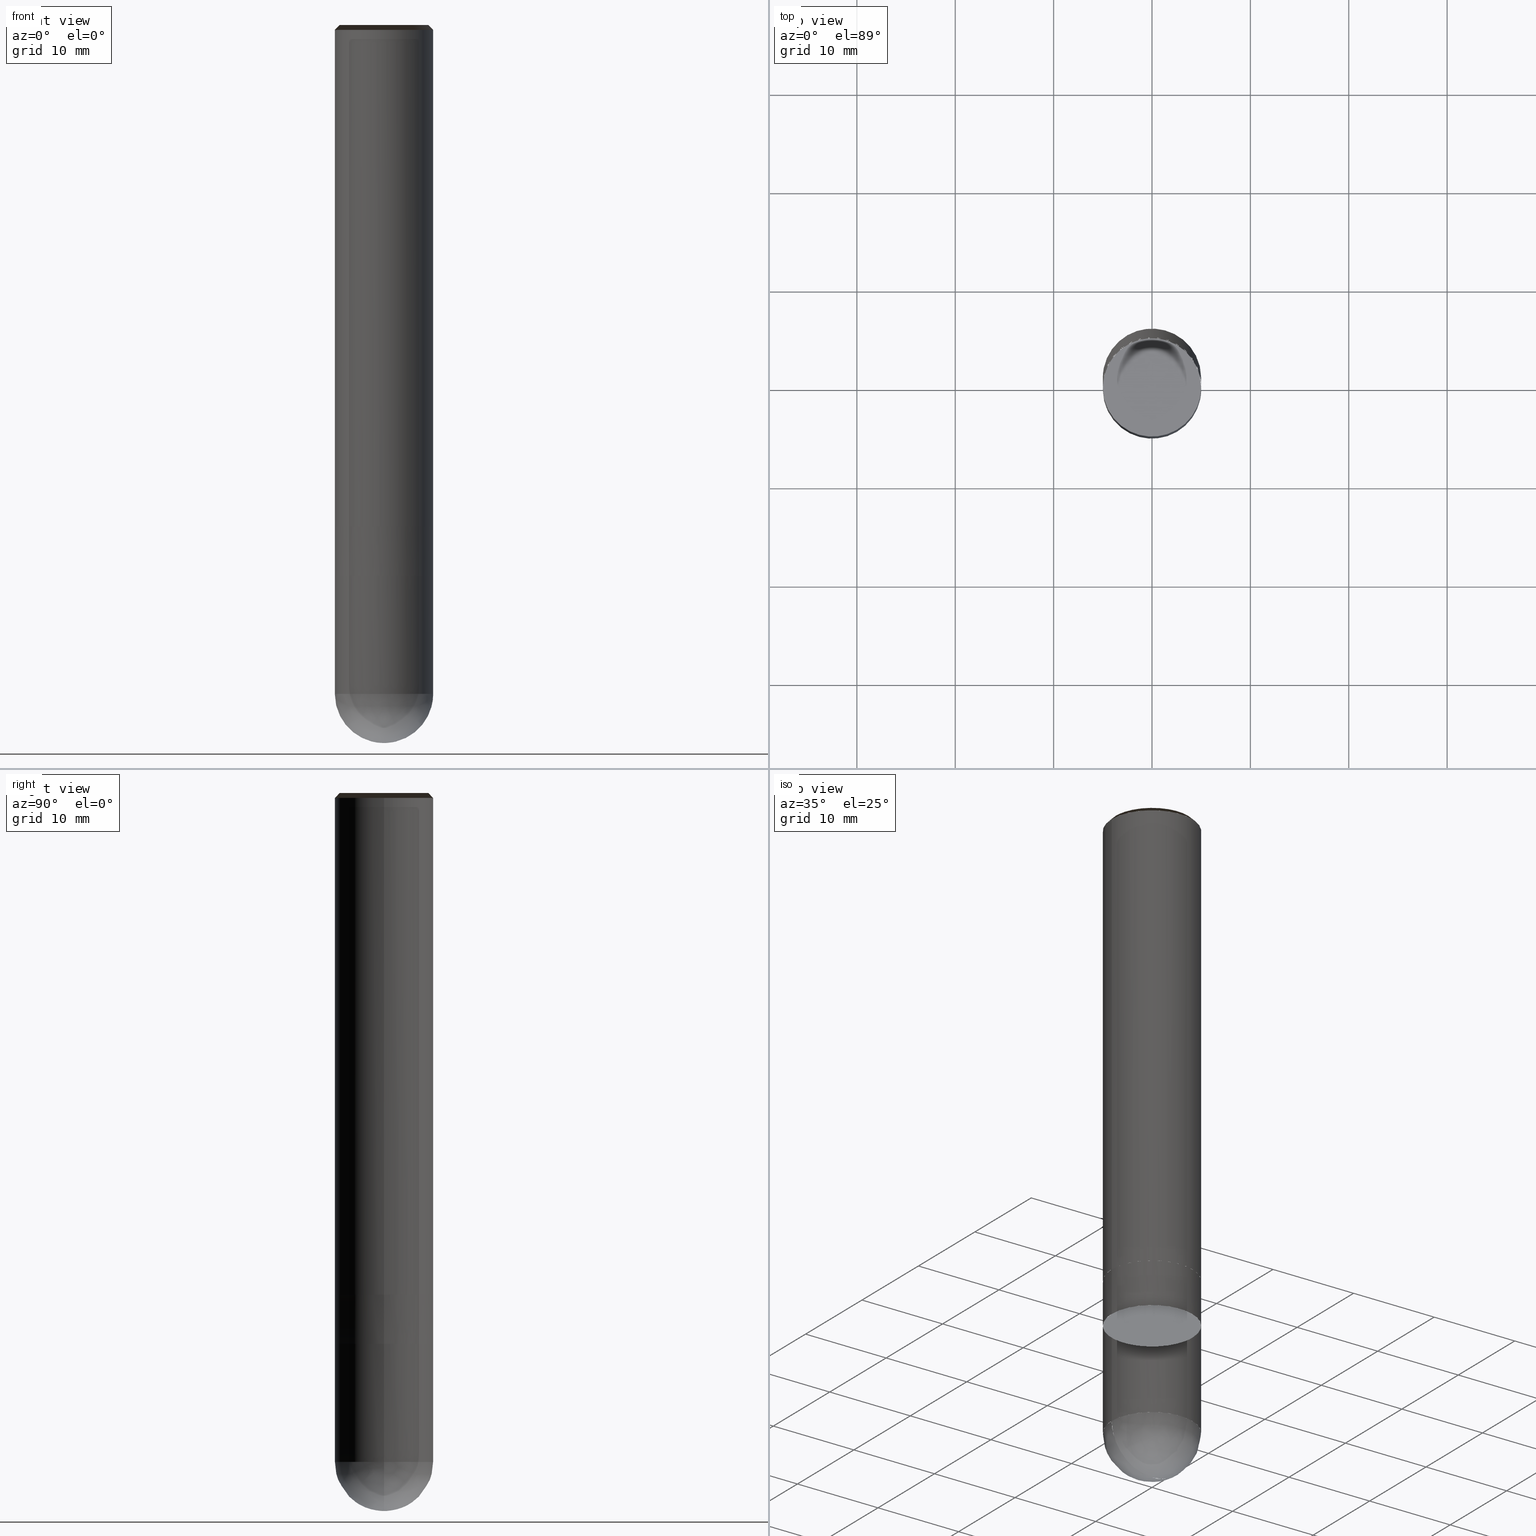
[diagram: canonical four-view strip — front | top / right | iso, engineering-drawing reading convention]
A machine part, canonical four-view strip (front | top / right | iso — engineering-drawing reading convention). The complete STEP part file that produces these views, byte-faithful:
ISO-10303-21;
HEADER;
/* Generated by ISBE GmbH (www.isbe.de) */
/* OPTION: using custom schema-name function */

FILE_DESCRIPTION(
/* description */ (''),
/* implementation_level */ '2;1');

FILE_NAME(
/*name*/ 'Drawing No  1241000   Issue 1',
/*time_stamp*/'2021-9-29T7:47:43',
/*author*/ ('ISBE GmbH'),
/*organization*/ ('ISBE GmbH'),
/*preprocessor_version*/ 'STEP IO v1.0',
/*originating_system*/ '',
/*authorisation*/ '');

FILE_SCHEMA (('AUTOMOTIVE_DESIGN'));
ENDSEC;

DATA;
#10=SHAPE_DEFINITION_REPRESENTATION(#11,#57);
#11=PRODUCT_DEFINITION_SHAPE('Document','',#13);
#12=PRODUCT_DEFINITION_CONTEXT('3D Mechanical Parts',#17,'design');
#13=PRODUCT_DEFINITION('A','First version',#14,#12);
#14=PRODUCT_DEFINITION_FORMATION_WITH_SPECIFIED_SOURCE('A','First version',#19,.MADE.);
#15=PRODUCT_RELATED_PRODUCT_CATEGORY('tool','tool',(#19));
#16=APPLICATION_PROTOCOL_DEFINITION('Draft International Standard', 'automotive_design',1999,#17);
#17=APPLICATION_CONTEXT('data for automotive mechanical design processes');
#18=PRODUCT_CONTEXT('3D Mechanical Parts',#17,'mechanical');
#19=PRODUCT('Document','Document','ISBE converted to STEP',(#18));
#20=(
LENGTH_UNIT()
NAMED_UNIT(*)
SI_UNIT(.MILLI.,.METRE.)
);
#21=(
NAMED_UNIT(*)
PLANE_ANGLE_UNIT()
SI_UNIT($,.RADIAN.)
);
#22=DIMENSIONAL_EXPONENTS(0.,0.,0.,0.,0.,0.,0.);
#23=PLANE_ANGLE_MEASURE_WITH_UNIT(PLANE_ANGLE_MEASURE(0.01745329252),#21);
#24=(
CONVERSION_BASED_UNIT('DEGREES',#23)
NAMED_UNIT(#22)
PLANE_ANGLE_UNIT()
);
#25=(
NAMED_UNIT(*)
SI_UNIT($,.STERADIAN.)
SOLID_ANGLE_UNIT()
);
#26=UNCERTAINTY_MEASURE_WITH_UNIT(LENGTH_MEASURE(0.001),#20, 'DISTANCE_ACCURACY_VALUE', 'Maximum model space distance between geometric entities at asserted connectivities');
#27=(
GEOMETRIC_REPRESENTATION_CONTEXT(3)
GLOBAL_UNCERTAINTY_ASSIGNED_CONTEXT((#26))
GLOBAL_UNIT_ASSIGNED_CONTEXT((#25,#24,#20))
REPRESENTATION_CONTEXT('ID1','3D')
);
#28=CARTESIAN_POINT('',(0.0,0.0,0.0));
#29=DIRECTION('',(1.0,0.0,0.0));
#30=DIRECTION('',(0.0,0.0,1.0));
#31=AXIS2_PLACEMENT_3D('',#28,#30,#29);
#32=CARTESIAN_POINT('',(0.0,0.0,0.0));
#33=DIRECTION('',(1.0,0.0,0.0));
#34=DIRECTION('',(0.0,0.0,1.0));
#35=AXIS2_PLACEMENT_3D('',#32,#34,#33);
#36=CARTESIAN_POINT('',(0.0,0.0,0.0));
#37=DIRECTION('',(1.0,0.0,0.0));
#38=DIRECTION('',(0.0,0.0,1.0));
#39=AXIS2_PLACEMENT_3D('',#36,#38,#37);
#40=CARTESIAN_POINT('',(0.0,0.0,0.0));
#41=DIRECTION('',(0.0,0.0,1.0));
#42=DIRECTION('',(1.0,0.0,0.0));
#43=AXIS2_PLACEMENT_3D('MCS',#40,#42,#41);
#44=CARTESIAN_POINT('',(0.0,0.0,51.0));
#45=DIRECTION('',(0.0,0.0,1.0));
#46=DIRECTION('',(1.0,0.0,0.0));
#47=AXIS2_PLACEMENT_3D('PCS',#44,#46,#45);
#48=CARTESIAN_POINT('',(0.0,0.0,-22.0));
#49=DIRECTION('',(0.0,0.0,1.0));
#50=DIRECTION('',(1.0,0.0,0.0));
#51=AXIS2_PLACEMENT_3D('CIP',#48,#50,#49);
#52=CARTESIAN_POINT('',(0.0,-5.0,-22.0));
#53=DIRECTION('',(0.0,0.0,1.0));
#54=DIRECTION('',(1.0,0.0,0.0));
#55=AXIS2_PLACEMENT_3D('CRP',#52,#54,#53);
#57=SHAPE_REPRESENTATION('Document',(#31,#35,#39,#43,#47,#51,#55),#27);
#58=DIRECTION('',(1.0,0.0,0.0));
#59=DIRECTION('',(0.0,0.0,1.0));
#60=CARTESIAN_POINT('',(-0.049997453449,-0.000504627202,-21.999198504663));
#61=CARTESIAN_POINT('',(-0.048429603854,-0.152765061749,-21.997431081003));
#62=CARTESIAN_POINT('',(-0.046457289696,-0.316964583895,-21.989726963752));
#63=CARTESIAN_POINT('',(-0.043947105295,-0.478099560288,-21.976895564746));
#64=CARTESIAN_POINT('',(-0.040599092297,-0.638095545915,-21.958950069116));
#65=CARTESIAN_POINT('',(-0.03613461023,-0.797180940759,-21.935908917072));
#66=CARTESIAN_POINT('',(-0.030283510295,-0.955313269132,-21.907795784955));
#67=CARTESIAN_POINT('',(-0.022783648595,-1.112371366306,-21.874639560909));
#68=CARTESIAN_POINT('',(-0.013381837427,-1.26820232017,-21.836474315195));
#69=CARTESIAN_POINT('',(-0.001835093932,-1.422636749589,-21.793339265183));
#70=CARTESIAN_POINT('',(0.012088041487,-1.575494717828,-21.745278735053));
#71=CARTESIAN_POINT('',(0.028606182205,-1.726588314198,-21.692342110249));
#72=CARTESIAN_POINT('',(0.047923793309,-1.875722909657,-21.63458378673));
#73=CARTESIAN_POINT('',(0.070229923981,-2.022697859175,-21.572063115079));
#74=CARTESIAN_POINT('',(0.095696984025,-2.167306984258,-21.504844339512));
#75=CARTESIAN_POINT('',(0.124479572906,-2.309338992959,-21.432996531865));
#76=CARTESIAN_POINT('',(0.156713369358,-2.448577917074,-21.356593520617));
#77=CARTESIAN_POINT('',(0.19251408963,-2.584803609036,-21.275713815027));
#78=CARTESIAN_POINT('',(0.231976522569,-2.71779232171,-21.190440524459));
#79=CARTESIAN_POINT('',(0.275173649881,-2.847317383458,-21.100861272985));
#80=CARTESIAN_POINT('',(0.322155859988,-2.973149974184,-21.00706810934));
#81=CARTESIAN_POINT('',(0.372950263886,-3.095060003653,-20.90915741234));
#82=CARTESIAN_POINT('',(0.427560121319,-3.212817090147,-20.807229791846));
#83=CARTESIAN_POINT('',(0.485964385305,-3.326191634944,-20.701389985377));
#84=CARTESIAN_POINT('',(0.548117372719,-3.434955986047,-20.591746750489));
#85=CARTESIAN_POINT('',(0.613948568085,-3.538885682724,-20.478412753017));
#86=CARTESIAN_POINT('',(0.683362567096,-3.637760770823,-20.361504451307));
#87=CARTESIAN_POINT('',(0.756239165553,-3.731367177376,-20.241141976539));
#88=CARTESIAN_POINT('',(0.832433598473,-3.819498131769,-20.117449009294));
#89=CARTESIAN_POINT('',(0.911776933044,-3.901955619591,-19.990552652456));
#90=CARTESIAN_POINT('',(0.994076617855,-3.978551854394,-19.860583300611));
#91=CARTESIAN_POINT('',(1.079117189537,-4.049110751792,-19.727674506053));
#92=CARTESIAN_POINT('',(1.166661136509,-4.113469389769,-19.591962841553));
#93=CARTESIAN_POINT('',(1.256449917995,-4.171479438695,-19.45358776002));
#94=CARTESIAN_POINT('',(1.348205134919,-4.223008544356,-19.312691451204));
#95=CARTESIAN_POINT('',(1.441629847684,-4.267941647387,-19.169418695588));
#96=CARTESIAN_POINT('',(1.536410034174,-4.306182222707,-19.023916715612));
#97=CARTESIAN_POINT('',(1.632216179731,-4.33765342309,-18.876335024397));
#98=CARTESIAN_POINT('',(1.728704989263,-4.362299111674,-18.726825272107));
#99=CARTESIAN_POINT('',(1.82552121012,-4.380084769129,-18.575541090118));
#100=CARTESIAN_POINT('',(1.922299552939,-4.390998262345,-18.422637933155));
#101=CARTESIAN_POINT('',(2.018666696354,-4.395050462801,-18.268272919548));
#102=CARTESIAN_POINT('',(2.11424336029,-4.392275704262,-18.112604669782));
#103=CARTESIAN_POINT('',(2.208646431531,-4.38273207113,-17.955793143507));
#104=CARTESIAN_POINT('',(2.301491124462,-4.366501510553,-17.797999475167));
#105=CARTESIAN_POINT('',(2.39239315921,-4.343689763295,-17.639385808423));
#106=CARTESIAN_POINT('',(2.480970939046,-4.314426110388,-17.480115129538));
#107=CARTESIAN_POINT('',(2.566847708676,-4.278862934619,-17.320351099904));
#108=CARTESIAN_POINT('',(2.649653675151,-4.237175098003,-17.160257887858));
#109=CARTESIAN_POINT('',(2.729028073366,-4.189559138475,-17.0));
#110=CARTESIAN_POINT('',(2.776941161829,-4.157955962217,-16.900584795322));
#111=CARTESIAN_POINT('',(2.82448831334,-4.125804863031,-16.801169590643));
#112=CARTESIAN_POINT('',(2.871663262277,-4.09311007769,-16.701754385965));
#113=CARTESIAN_POINT('',(2.918459792068,-4.059875914617,-16.602339181287));
#114=CARTESIAN_POINT('',(2.964871736006,-4.026106753308,-16.502923976608));
#115=CARTESIAN_POINT('',(3.010892978066,-3.991807043762,-16.40350877193));
#116=CARTESIAN_POINT('',(3.056517453707,-3.956981305893,-16.304093567251));
#117=CARTESIAN_POINT('',(3.101739150672,-3.92163412893,-16.204678362573));
#118=CARTESIAN_POINT('',(3.146552109783,-3.885770170818,-16.105263157895));
#119=CARTESIAN_POINT('',(3.190950425722,-3.849394157603,-16.005847953216));
#120=CARTESIAN_POINT('',(3.234928247812,-3.812510882805,-15.906432748538));
#121=CARTESIAN_POINT('',(3.27847978079,-3.775125206791,-15.80701754386));
#122=CARTESIAN_POINT('',(3.321599285564,-3.737242056135,-15.707602339181));
#123=CARTESIAN_POINT('',(3.364281079976,-3.698866422962,-15.608187134503));
#124=CARTESIAN_POINT('',(3.406519539548,-3.660003364299,-15.508771929825));
#125=CARTESIAN_POINT('',(3.448309098223,-3.620658001402,-15.409356725146));
#126=CARTESIAN_POINT('',(3.489644249097,-3.580835519085,-15.309941520468));
#127=CARTESIAN_POINT('',(3.53051954515,-3.540541165036,-15.210526315789));
#128=CARTESIAN_POINT('',(3.570929599957,-3.499780249123,-15.111111111111));
#129=CARTESIAN_POINT('',(3.610869088404,-3.458558142696,-15.011695906433));
#130=CARTESIAN_POINT('',(3.650332747385,-3.416880277881,-14.912280701754));
#131=CARTESIAN_POINT('',(3.689315376497,-3.374752146861,-14.812865497076));
#132=CARTESIAN_POINT('',(3.727811838726,-3.332179301156,-14.713450292398));
#133=CARTESIAN_POINT('',(3.765817061126,-3.289167350886,-14.614035087719));
#134=CARTESIAN_POINT('',(3.803326035481,-3.245721964037,-14.514619883041));
#135=CARTESIAN_POINT('',(3.840333818973,-3.201848865711,-14.415204678363));
#136=CARTESIAN_POINT('',(3.876835534826,-3.157553837373,-14.315789473684));
#137=CARTESIAN_POINT('',(3.912826372955,-3.112842716089,-14.216374269006));
#138=CARTESIAN_POINT('',(3.948301590594,-3.067721393756,-14.116959064327));
#139=CARTESIAN_POINT('',(3.983256512927,-3.022195816326,-14.017543859649));
#140=CARTESIAN_POINT('',(4.0176865337,-2.976271983023,-13.918128654971));
#141=CARTESIAN_POINT('',(4.051587115827,-2.929955945551,-13.818713450292));
#142=CARTESIAN_POINT('',(4.084953791991,-2.883253807298,-13.719298245614));
#143=CARTESIAN_POINT('',(4.117782165233,-2.836171722532,-13.619883040936));
#144=CARTESIAN_POINT('',(4.150067909529,-2.788715895587,-13.520467836257));
#145=CARTESIAN_POINT('',(4.181806770359,-2.740892580051,-13.421052631579));
#146=CARTESIAN_POINT('',(4.212994565273,-2.692708077936,-13.321637426901));
#147=CARTESIAN_POINT('',(4.243627184436,-2.644168738851,-13.222222222222));
#148=CARTESIAN_POINT('',(4.273700591175,-2.595280959163,-13.122807017544));
#149=CARTESIAN_POINT('',(4.303210822505,-2.546051181158,-13.023391812865));
#150=CARTESIAN_POINT('',(4.332153989659,-2.496485892186,-12.923976608187));
#151=CARTESIAN_POINT('',(4.360526278591,-2.446591623814,-12.824561403509));
#152=CARTESIAN_POINT('',(4.388323950488,-2.396374950958,-12.72514619883));
#153=CARTESIAN_POINT('',(4.415543342255,-2.345842491019,-12.625730994152));
#154=CARTESIAN_POINT('',(4.442180867003,-2.295000903013,-12.526315789474));
#155=CARTESIAN_POINT('',(4.46823301452,-2.243856886692,-12.426900584795));
#156=CARTESIAN_POINT('',(4.493696351731,-2.19241718166,-12.327485380117));
#157=CARTESIAN_POINT('',(4.518567523155,-2.140688566488,-12.228070175439));
#158=CARTESIAN_POINT('',(4.542843251343,-2.088677857815,-12.12865497076));
#159=CARTESIAN_POINT('',(4.566520337313,-2.036391909458,-12.029239766082));
#160=CARTESIAN_POINT('',(4.58959566097,-1.983837611501,-11.929824561404));
#161=CARTESIAN_POINT('',(4.612066181517,-1.931021889391,-11.830409356725));
#162=CARTESIAN_POINT('',(4.633928937857,-1.877951703025,-11.730994152047));
#163=CARTESIAN_POINT('',(4.65518104898,-1.824634045833,-11.631578947368));
#164=CARTESIAN_POINT('',(4.675819714349,-1.771075943855,-11.53216374269));
#165=CARTESIAN_POINT('',(4.695842214262,-1.717284454817,-11.432748538012));
#166=CARTESIAN_POINT('',(4.715245910213,-1.6632666672,-11.333333333333));
#167=CARTESIAN_POINT('',(4.734028245243,-1.609029699304,-11.233918128655));
#168=CARTESIAN_POINT('',(4.752186744271,-1.554580698315,-11.134502923977));
#169=CARTESIAN_POINT('',(4.769719014426,-1.499926839358,-11.035087719298));
#170=CARTESIAN_POINT('',(4.786622745356,-1.445075324555,-10.93567251462));
#171=CARTESIAN_POINT('',(4.802895709541,-1.390033382071,-10.836257309942));
#172=CARTESIAN_POINT('',(4.818535762577,-1.334808265171,-10.736842105263));
#173=CARTESIAN_POINT('',(4.833540843465,-1.279407251252,-10.637426900585));
#174=CARTESIAN_POINT('',(4.847908974881,-1.223837640895,-10.538011695906));
#175=CARTESIAN_POINT('',(4.861638263435,-1.168106756894,-10.438596491228));
#176=CARTESIAN_POINT('',(4.874726899924,-1.1122219433,-10.33918128655));
#177=CARTESIAN_POINT('',(4.887173159566,-1.056190564443,-10.239766081871));
#178=CARTESIAN_POINT('',(4.89897540223,-1.000020003971,-10.140350877193));
#179=CARTESIAN_POINT('',(4.910132072653,-0.943717663871,-10.040935672515));
#180=CARTESIAN_POINT('',(4.920641700642,-0.887290963496,-9.941520467836));
#181=CARTESIAN_POINT('',(4.93050290127,-0.830747338587,-9.842105263158));
#182=CARTESIAN_POINT('',(4.939714375057,-0.774094240293,-9.74269005848));
#183=CARTESIAN_POINT('',(4.948274908143,-0.717339134188,-9.643274853801));
#184=CARTESIAN_POINT('',(4.956183372448,-0.66048949929,-9.543859649123));
#185=CARTESIAN_POINT('',(4.963438725816,-0.603552827073,-9.444444444444));
#186=CARTESIAN_POINT('',(4.97004001216,-0.54653662048,-9.345029239766));
#187=CARTESIAN_POINT('',(4.975986361582,-0.489448392935,-9.245614035088));
#188=CARTESIAN_POINT('',(4.98127699049,-0.432295667354,-9.146198830409));
#189=CARTESIAN_POINT('',(4.985911201701,-0.375085975149,-9.046783625731));
#190=CARTESIAN_POINT('',(4.989888384532,-0.317826855243,-8.947368421053));
#191=CARTESIAN_POINT('',(4.993208014882,-0.260525853071,-8.847953216374));
#192=CARTESIAN_POINT('',(4.9958696553,-0.203190519585,-8.748538011696));
#193=CARTESIAN_POINT('',(4.997872955044,-0.145828410263,-8.649122807018));
#194=CARTESIAN_POINT('',(4.999217650124,-0.088447084113,-8.549707602339));
#195=CARTESIAN_POINT('',(4.999903563341,-0.031054102671,-8.450292397661));
#196=CARTESIAN_POINT('',(4.999930604306,0.026342970986,-8.350877192982));
#197=CARTESIAN_POINT('',(4.999298769458,0.083736573246,-8.251461988304));
#198=CARTESIAN_POINT('',(4.998008142056,0.141119140952,-8.152046783626));
#199=CARTESIAN_POINT('',(4.996058892176,0.198483112403,-8.052631578947));
#200=CARTESIAN_POINT('',(4.993451276684,0.255820928346,-7.953216374269));
#201=CARTESIAN_POINT('',(4.990185639205,0.313125032976,-7.853801169591));
#202=CARTESIAN_POINT('',(4.986262410073,0.370387874932,-7.754385964912));
#203=CARTESIAN_POINT('',(4.98168210628,0.427601908288,-7.654970760234));
#204=CARTESIAN_POINT('',(4.976445331405,0.48475959355,-7.555555555556));
#205=CARTESIAN_POINT('',(4.970552775534,0.541853398652,-7.456140350877));
#206=CARTESIAN_POINT('',(4.964005215171,0.598875799943,-7.356725146199));
#207=CARTESIAN_POINT('',(4.956803513133,0.655819283182,-7.25730994152));
#208=CARTESIAN_POINT('',(4.948948618439,0.712676344529,-7.157894736842));
#209=CARTESIAN_POINT('',(4.940441566183,0.769439491531,-7.058479532164));
#210=CARTESIAN_POINT('',(4.9312834774,0.826101244111,-6.959064327485));
#211=CARTESIAN_POINT('',(4.921475558914,0.882654135555,-6.859649122807));
#212=CARTESIAN_POINT('',(4.911019103184,0.939090713492,-6.760233918129));
#213=CARTESIAN_POINT('',(4.899915488129,0.995403540879,-6.66081871345));
#214=CARTESIAN_POINT('',(4.888166176951,1.051585196983,-6.561403508772));
#215=CARTESIAN_POINT('',(4.875772717939,1.107628278352,-6.461988304094));
#216=CARTESIAN_POINT('',(4.862736744265,1.163525399799,-6.362573099415));
#217=CARTESIAN_POINT('',(4.849059973771,1.219269195369,-6.263157894737));
#218=CARTESIAN_POINT('',(4.83474420874,1.274852319311,-6.163742690058));
#219=CARTESIAN_POINT('',(4.819791335661,1.330267447051,-6.06432748538));
#220=CARTESIAN_POINT('',(4.804203324979,1.385507276147,-5.964912280702));
#221=CARTESIAN_POINT('',(4.787982230835,1.440564527263,-5.865497076023));
#222=CARTESIAN_POINT('',(4.771130190795,1.495431945119,-5.766081871345));
#223=CARTESIAN_POINT('',(4.753649425571,1.550102299451,-5.666666666667));
#224=CARTESIAN_POINT('',(4.735542238726,1.604568385966,-5.567251461988));
#225=CARTESIAN_POINT('',(4.71681101637,1.658823027285,-5.46783625731));
#226=CARTESIAN_POINT('',(4.697458226847,1.712859073896,-5.368421052632));
#227=CARTESIAN_POINT('',(4.677486420409,1.766669405091,-5.269005847953));
#228=CARTESIAN_POINT('',(4.656898228882,1.820246929906,-5.169590643275));
#229=CARTESIAN_POINT('',(4.635696365315,1.873584588056,-5.070175438596));
#230=CARTESIAN_POINT('',(0.049997453449,0.000504627202,-21.999198504663));
#231=CARTESIAN_POINT('',(0.048429603854,0.152765061749,-21.997431081003));
#232=CARTESIAN_POINT('',(0.046457289696,0.316964583895,-21.989726963752));
#233=CARTESIAN_POINT('',(0.043947105295,0.478099560288,-21.976895564746));
#234=CARTESIAN_POINT('',(0.040599092297,0.638095545915,-21.958950069116));
#235=CARTESIAN_POINT('',(0.03613461023,0.797180940759,-21.935908917072));
#236=CARTESIAN_POINT('',(0.030283510295,0.955313269132,-21.907795784955));
#237=CARTESIAN_POINT('',(0.022783648595,1.112371366306,-21.874639560909));
#238=CARTESIAN_POINT('',(0.013381837427,1.26820232017,-21.836474315195));
#239=CARTESIAN_POINT('',(0.001835093932,1.422636749589,-21.793339265183));
#240=CARTESIAN_POINT('',(-0.012088041487,1.575494717828,-21.745278735053));
#241=CARTESIAN_POINT('',(-0.028606182205,1.726588314198,-21.692342110249));
#242=CARTESIAN_POINT('',(-0.047923793309,1.875722909657,-21.63458378673));
#243=CARTESIAN_POINT('',(-0.070229923981,2.022697859175,-21.572063115079));
#244=CARTESIAN_POINT('',(-0.095696984025,2.167306984258,-21.504844339512));
#245=CARTESIAN_POINT('',(-0.124479572906,2.309338992959,-21.432996531865));
#246=CARTESIAN_POINT('',(-0.156713369358,2.448577917074,-21.356593520617));
#247=CARTESIAN_POINT('',(-0.19251408963,2.584803609036,-21.275713815027));
#248=CARTESIAN_POINT('',(-0.231976522569,2.71779232171,-21.190440524459));
#249=CARTESIAN_POINT('',(-0.275173649881,2.847317383458,-21.100861272985));
#250=CARTESIAN_POINT('',(-0.322155859988,2.973149974184,-21.00706810934));
#251=CARTESIAN_POINT('',(-0.372950263886,3.095060003653,-20.90915741234));
#252=CARTESIAN_POINT('',(-0.427560121319,3.212817090147,-20.807229791846));
#253=CARTESIAN_POINT('',(-0.485964385305,3.326191634944,-20.701389985377));
#254=CARTESIAN_POINT('',(-0.548117372719,3.434955986047,-20.591746750489));
#255=CARTESIAN_POINT('',(-0.613948568085,3.538885682724,-20.478412753017));
#256=CARTESIAN_POINT('',(-0.683362567096,3.637760770823,-20.361504451307));
#257=CARTESIAN_POINT('',(-0.756239165553,3.731367177376,-20.241141976539));
#258=CARTESIAN_POINT('',(-0.832433598473,3.819498131769,-20.117449009294));
#259=CARTESIAN_POINT('',(-0.911776933044,3.901955619591,-19.990552652456));
#260=CARTESIAN_POINT('',(-0.994076617855,3.978551854394,-19.860583300611));
#261=CARTESIAN_POINT('',(-1.079117189537,4.049110751792,-19.727674506053));
#262=CARTESIAN_POINT('',(-1.166661136509,4.113469389769,-19.591962841553));
#263=CARTESIAN_POINT('',(-1.256449917995,4.171479438695,-19.45358776002));
#264=CARTESIAN_POINT('',(-1.348205134919,4.223008544356,-19.312691451204));
#265=CARTESIAN_POINT('',(-1.441629847684,4.267941647387,-19.169418695588));
#266=CARTESIAN_POINT('',(-1.536410034174,4.306182222707,-19.023916715612));
#267=CARTESIAN_POINT('',(-1.632216179731,4.33765342309,-18.876335024397));
#268=CARTESIAN_POINT('',(-1.728704989263,4.362299111674,-18.726825272107));
#269=CARTESIAN_POINT('',(-1.82552121012,4.380084769129,-18.575541090118));
#270=CARTESIAN_POINT('',(-1.922299552939,4.390998262345,-18.422637933155));
#271=CARTESIAN_POINT('',(-2.018666696354,4.395050462802,-18.268272919548));
#272=CARTESIAN_POINT('',(-2.11424336029,4.392275704262,-18.112604669782));
#273=CARTESIAN_POINT('',(-2.208646431531,4.38273207113,-17.955793143507));
#274=CARTESIAN_POINT('',(-2.301491124462,4.366501510553,-17.797999475167));
#275=CARTESIAN_POINT('',(-2.39239315921,4.343689763295,-17.639385808423));
#276=CARTESIAN_POINT('',(-2.480970939046,4.314426110388,-17.480115129538));
#277=CARTESIAN_POINT('',(-2.566847708676,4.278862934619,-17.320351099904));
#278=CARTESIAN_POINT('',(-2.649653675151,4.237175098003,-17.160257887858));
#279=CARTESIAN_POINT('',(-2.729028073366,4.189559138475,-17.0));
#280=CARTESIAN_POINT('',(-2.776941161829,4.157955962217,-16.900584795322));
#281=CARTESIAN_POINT('',(-2.82448831334,4.125804863031,-16.801169590643));
#282=CARTESIAN_POINT('',(-2.871663262277,4.09311007769,-16.701754385965));
#283=CARTESIAN_POINT('',(-2.918459792068,4.059875914617,-16.602339181287));
#284=CARTESIAN_POINT('',(-2.964871736006,4.026106753308,-16.502923976608));
#285=CARTESIAN_POINT('',(-3.010892978066,3.991807043762,-16.40350877193));
#286=CARTESIAN_POINT('',(-3.056517453707,3.956981305893,-16.304093567251));
#287=CARTESIAN_POINT('',(-3.101739150672,3.92163412893,-16.204678362573));
#288=CARTESIAN_POINT('',(-3.146552109783,3.885770170818,-16.105263157895));
#289=CARTESIAN_POINT('',(-3.190950425722,3.849394157603,-16.005847953216));
#290=CARTESIAN_POINT('',(-3.234928247812,3.812510882805,-15.906432748538));
#291=CARTESIAN_POINT('',(-3.27847978079,3.775125206791,-15.80701754386));
#292=CARTESIAN_POINT('',(-3.321599285564,3.737242056135,-15.707602339181));
#293=CARTESIAN_POINT('',(-3.364281079976,3.698866422962,-15.608187134503));
#294=CARTESIAN_POINT('',(-3.406519539548,3.660003364299,-15.508771929825));
#295=CARTESIAN_POINT('',(-3.448309098222,3.620658001402,-15.409356725146));
#296=CARTESIAN_POINT('',(-3.489644249097,3.580835519085,-15.309941520468));
#297=CARTESIAN_POINT('',(-3.53051954515,3.540541165036,-15.210526315789));
#298=CARTESIAN_POINT('',(-3.570929599957,3.499780249123,-15.111111111111));
#299=CARTESIAN_POINT('',(-3.610869088404,3.458558142696,-15.011695906433));
#300=CARTESIAN_POINT('',(-3.650332747385,3.416880277881,-14.912280701754));
#301=CARTESIAN_POINT('',(-3.689315376497,3.374752146861,-14.812865497076));
#302=CARTESIAN_POINT('',(-3.727811838726,3.332179301156,-14.713450292398));
#303=CARTESIAN_POINT('',(-3.765817061126,3.289167350886,-14.614035087719));
#304=CARTESIAN_POINT('',(-3.803326035481,3.245721964037,-14.514619883041));
#305=CARTESIAN_POINT('',(-3.840333818973,3.201848865711,-14.415204678363));
#306=CARTESIAN_POINT('',(-3.876835534826,3.157553837373,-14.315789473684));
#307=CARTESIAN_POINT('',(-3.912826372955,3.112842716089,-14.216374269006));
#308=CARTESIAN_POINT('',(-3.948301590594,3.067721393756,-14.116959064327));
#309=CARTESIAN_POINT('',(-3.983256512927,3.022195816326,-14.017543859649));
#310=CARTESIAN_POINT('',(-4.0176865337,2.976271983023,-13.918128654971));
#311=CARTESIAN_POINT('',(-4.051587115827,2.929955945551,-13.818713450292));
#312=CARTESIAN_POINT('',(-4.084953791991,2.883253807298,-13.719298245614));
#313=CARTESIAN_POINT('',(-4.117782165233,2.836171722532,-13.619883040936));
#314=CARTESIAN_POINT('',(-4.150067909528,2.788715895587,-13.520467836257));
#315=CARTESIAN_POINT('',(-4.181806770359,2.740892580051,-13.421052631579));
#316=CARTESIAN_POINT('',(-4.212994565273,2.692708077936,-13.321637426901));
#317=CARTESIAN_POINT('',(-4.243627184436,2.644168738851,-13.222222222222));
#318=CARTESIAN_POINT('',(-4.273700591175,2.595280959163,-13.122807017544));
#319=CARTESIAN_POINT('',(-4.303210822505,2.546051181158,-13.023391812865));
#320=CARTESIAN_POINT('',(-4.332153989659,2.496485892186,-12.923976608187));
#321=CARTESIAN_POINT('',(-4.360526278591,2.446591623814,-12.824561403509));
#322=CARTESIAN_POINT('',(-4.388323950488,2.396374950958,-12.72514619883));
#323=CARTESIAN_POINT('',(-4.415543342255,2.345842491019,-12.625730994152));
#324=CARTESIAN_POINT('',(-4.442180867003,2.295000903013,-12.526315789474));
#325=CARTESIAN_POINT('',(-4.46823301452,2.243856886692,-12.426900584795));
#326=CARTESIAN_POINT('',(-4.493696351731,2.19241718166,-12.327485380117));
#327=CARTESIAN_POINT('',(-4.518567523155,2.140688566488,-12.228070175439));
#328=CARTESIAN_POINT('',(-4.542843251343,2.088677857816,-12.12865497076));
#329=CARTESIAN_POINT('',(-4.566520337313,2.036391909458,-12.029239766082));
#330=CARTESIAN_POINT('',(-4.58959566097,1.983837611501,-11.929824561404));
#331=CARTESIAN_POINT('',(-4.612066181517,1.931021889391,-11.830409356725));
#332=CARTESIAN_POINT('',(-4.633928937857,1.877951703025,-11.730994152047));
#333=CARTESIAN_POINT('',(-4.65518104898,1.824634045833,-11.631578947368));
#334=CARTESIAN_POINT('',(-4.675819714349,1.771075943855,-11.53216374269));
#335=CARTESIAN_POINT('',(-4.695842214262,1.717284454817,-11.432748538012));
#336=CARTESIAN_POINT('',(-4.715245910213,1.6632666672,-11.333333333333));
#337=CARTESIAN_POINT('',(-4.734028245243,1.609029699304,-11.233918128655));
#338=CARTESIAN_POINT('',(-4.752186744271,1.554580698315,-11.134502923977));
#339=CARTESIAN_POINT('',(-4.769719014426,1.499926839358,-11.035087719298));
#340=CARTESIAN_POINT('',(-4.786622745356,1.445075324555,-10.93567251462));
#341=CARTESIAN_POINT('',(-4.802895709541,1.390033382071,-10.836257309942));
#342=CARTESIAN_POINT('',(-4.818535762577,1.334808265171,-10.736842105263));
#343=CARTESIAN_POINT('',(-4.833540843465,1.279407251252,-10.637426900585));
#344=CARTESIAN_POINT('',(-4.847908974881,1.223837640895,-10.538011695906));
#345=CARTESIAN_POINT('',(-4.861638263435,1.168106756894,-10.438596491228));
#346=CARTESIAN_POINT('',(-4.874726899924,1.1122219433,-10.33918128655));
#347=CARTESIAN_POINT('',(-4.887173159566,1.056190564443,-10.239766081871));
#348=CARTESIAN_POINT('',(-4.89897540223,1.000020003971,-10.140350877193));
#349=CARTESIAN_POINT('',(-4.910132072653,0.943717663871,-10.040935672515));
#350=CARTESIAN_POINT('',(-4.920641700642,0.887290963496,-9.941520467836));
#351=CARTESIAN_POINT('',(-4.93050290127,0.830747338587,-9.842105263158));
#352=CARTESIAN_POINT('',(-4.939714375057,0.774094240293,-9.74269005848));
#353=CARTESIAN_POINT('',(-4.948274908143,0.717339134188,-9.643274853801));
#354=CARTESIAN_POINT('',(-4.956183372448,0.66048949929,-9.543859649123));
#355=CARTESIAN_POINT('',(-4.963438725816,0.603552827073,-9.444444444444));
#356=CARTESIAN_POINT('',(-4.97004001216,0.54653662048,-9.345029239766));
#357=CARTESIAN_POINT('',(-4.975986361582,0.489448392935,-9.245614035088));
#358=CARTESIAN_POINT('',(-4.98127699049,0.432295667354,-9.146198830409));
#359=CARTESIAN_POINT('',(-4.985911201701,0.375085975149,-9.046783625731));
#360=CARTESIAN_POINT('',(-4.989888384532,0.317826855243,-8.947368421053));
#361=CARTESIAN_POINT('',(-4.993208014882,0.260525853071,-8.847953216374));
#362=CARTESIAN_POINT('',(-4.9958696553,0.203190519585,-8.748538011696));
#363=CARTESIAN_POINT('',(-4.997872955044,0.145828410263,-8.649122807018));
#364=CARTESIAN_POINT('',(-4.999217650124,0.088447084113,-8.549707602339));
#365=CARTESIAN_POINT('',(-4.999903563341,0.031054102671,-8.450292397661));
#366=CARTESIAN_POINT('',(-4.999930604306,-0.026342970986,-8.350877192982));
#367=CARTESIAN_POINT('',(-4.999298769458,-0.083736573246,-8.251461988304));
#368=CARTESIAN_POINT('',(-4.998008142056,-0.141119140952,-8.152046783626));
#369=CARTESIAN_POINT('',(-4.996058892176,-0.198483112403,-8.052631578947));
#370=CARTESIAN_POINT('',(-4.993451276684,-0.255820928346,-7.953216374269));
#371=CARTESIAN_POINT('',(-4.990185639205,-0.313125032976,-7.853801169591));
#372=CARTESIAN_POINT('',(-4.986262410073,-0.370387874932,-7.754385964912));
#373=CARTESIAN_POINT('',(-4.98168210628,-0.427601908288,-7.654970760234));
#374=CARTESIAN_POINT('',(-4.976445331405,-0.48475959355,-7.555555555556));
#375=CARTESIAN_POINT('',(-4.970552775534,-0.541853398652,-7.456140350877));
#376=CARTESIAN_POINT('',(-4.964005215171,-0.598875799943,-7.356725146199));
#377=CARTESIAN_POINT('',(-4.956803513133,-0.655819283182,-7.25730994152));
#378=CARTESIAN_POINT('',(-4.948948618439,-0.712676344529,-7.157894736842));
#379=CARTESIAN_POINT('',(-4.940441566183,-0.769439491531,-7.058479532164));
#380=CARTESIAN_POINT('',(-4.9312834774,-0.826101244111,-6.959064327485));
#381=CARTESIAN_POINT('',(-4.921475558914,-0.882654135555,-6.859649122807));
#382=CARTESIAN_POINT('',(-4.911019103184,-0.939090713492,-6.760233918129));
#383=CARTESIAN_POINT('',(-4.899915488129,-0.995403540879,-6.66081871345));
#384=CARTESIAN_POINT('',(-4.888166176951,-1.051585196983,-6.561403508772));
#385=CARTESIAN_POINT('',(-4.875772717939,-1.107628278352,-6.461988304094));
#386=CARTESIAN_POINT('',(-4.862736744265,-1.163525399799,-6.362573099415));
#387=CARTESIAN_POINT('',(-4.849059973771,-1.219269195369,-6.263157894737));
#388=CARTESIAN_POINT('',(-4.83474420874,-1.274852319311,-6.163742690058));
#389=CARTESIAN_POINT('',(-4.819791335661,-1.330267447051,-6.06432748538));
#390=CARTESIAN_POINT('',(-4.804203324979,-1.385507276147,-5.964912280702));
#391=CARTESIAN_POINT('',(-4.787982230835,-1.440564527263,-5.865497076023));
#392=CARTESIAN_POINT('',(-4.771130190795,-1.495431945119,-5.766081871345));
#393=CARTESIAN_POINT('',(-4.753649425571,-1.550102299451,-5.666666666667));
#394=CARTESIAN_POINT('',(-4.735542238726,-1.604568385966,-5.567251461988));
#395=CARTESIAN_POINT('',(-4.71681101637,-1.658823027285,-5.46783625731));
#396=CARTESIAN_POINT('',(-4.697458226847,-1.712859073896,-5.368421052632));
#397=CARTESIAN_POINT('',(-4.677486420409,-1.766669405091,-5.269005847953));
#398=CARTESIAN_POINT('',(-4.656898228882,-1.820246929906,-5.169590643275));
#399=CARTESIAN_POINT('',(-4.635696365315,-1.873584588056,-5.070175438596));
#400=CARTESIAN_POINT('',(0.0,0.0,-22.0));
#401=CARTESIAN_POINT('',(5.0,0.0,-22.0));
#402=CARTESIAN_POINT('',(5.0,5.0,-22.0));
#403=CARTESIAN_POINT('',(0.0,5.0,-22.0));
#404=CARTESIAN_POINT('',(-5.0,5.0,-22.0));
#405=CARTESIAN_POINT('',(-5.0,0.0,-22.0));
#406=CARTESIAN_POINT('',(5.0,0.0,-17.0));
#407=CARTESIAN_POINT('',(5.0,5.0,-17.0));
#408=CARTESIAN_POINT('',(0.0,5.0,-17.0));
#409=CARTESIAN_POINT('',(-5.0,5.0,-17.0));
#410=CARTESIAN_POINT('',(-5.0,0.0,-17.0));
#411=CARTESIAN_POINT('',(5.0,0.0,-5.0));
#412=CARTESIAN_POINT('',(5.0,5.0,-5.0));
#413=CARTESIAN_POINT('',(0.0,5.0,-5.0));
#414=CARTESIAN_POINT('',(-5.0,5.0,-5.0));
#415=CARTESIAN_POINT('',(-5.0,0.0,-5.0));
#416=CARTESIAN_POINT('',(0.0,0.0,-5.0));
#417=CARTESIAN_POINT('',(-5.0,-5.0,-22.0));
#418=CARTESIAN_POINT('',(0.0,-5.0,-22.0));
#419=CARTESIAN_POINT('',(5.0,-5.0,-22.0));
#420=CARTESIAN_POINT('',(-5.0,-5.0,-17.0));
#421=CARTESIAN_POINT('',(0.0,-5.0,-17.0));
#422=CARTESIAN_POINT('',(5.0,-5.0,-17.0));
#423=CARTESIAN_POINT('',(-5.0,-5.0,-5.0));
#424=CARTESIAN_POINT('',(0.0,-5.0,-5.0));
#425=CARTESIAN_POINT('',(5.0,-5.0,-5.0));
#426=CARTESIAN_POINT('',(5.0,0.0,0.0));
#427=CARTESIAN_POINT('',(5.0,5.0,0.0));
#428=CARTESIAN_POINT('',(0.0,5.0,0.0));
#429=CARTESIAN_POINT('',(-5.0,5.0,0.0));
#430=CARTESIAN_POINT('',(-5.0,0.0,0.0));
#431=CARTESIAN_POINT('',(5.0,0.0,50.5));
#432=CARTESIAN_POINT('',(5.0,5.0,50.5));
#433=CARTESIAN_POINT('',(0.0,5.0,50.5));
#434=CARTESIAN_POINT('',(-5.0,5.0,50.5));
#435=CARTESIAN_POINT('',(-5.0,0.0,50.5));
#436=CARTESIAN_POINT('',(4.5,0.0,51.0));
#437=CARTESIAN_POINT('',(4.5,4.5,51.0));
#438=CARTESIAN_POINT('',(0.0,4.5,51.0));
#439=CARTESIAN_POINT('',(-4.5,4.5,51.0));
#440=CARTESIAN_POINT('',(-4.5,0.0,51.0));
#441=CARTESIAN_POINT('',(0.0,0.0,51.0));
#442=CARTESIAN_POINT('',(-5.0,-5.0,0.0));
#443=CARTESIAN_POINT('',(0.0,-5.0,0.0));
#444=CARTESIAN_POINT('',(5.0,-5.0,0.0));
#445=CARTESIAN_POINT('',(-5.0,-5.0,50.5));
#446=CARTESIAN_POINT('',(0.0,-5.0,50.5));
#447=CARTESIAN_POINT('',(5.0,-5.0,50.5));
#448=CARTESIAN_POINT('',(-4.5,-4.5,51.0));
#449=CARTESIAN_POINT('',(0.0,-4.5,51.0));
#450=CARTESIAN_POINT('',(4.5,-4.5,51.0));
#451=(
BOUNDED_CURVE()
B_SPLINE_CURVE(1,(#60,#61,#62,#63,#64,#65,#66,#67,#68,#69,#70,#71,#72,#73,#74,#75,#76,#77,#78,#79,#80,#81,#82,#83,#84,#85,#86,#87,#88,#89,#90,#91,#92,#93,#94,#95,#96,#97,#98,#99,#100,#101,#102,#103,#104,#105,#106,#107,#108,#109,#110,#111,#112,#113,#114,#115,#116,#117,#118,#119,#120,#121,#122,#123,#124,#125,#126,#127,#128,#129,#130,#131,#132,#133,#134,#135,#136,#137,#138,#139,#140,#141,#142,#143,#144,#145,#146,#147,#148,#149,#150,#151,#152,#153,#154,#155,#156,#157,#158,#159,#160,#161,#162,#163,#164,#165,#166,#167,#168,#169,#170,#171,#172,#173,#174,#175,#176,#177,#178,#179,#180,#181,#182,#183,#184,#185,#186,#187,#188,#189,#190,#191,#192,#193,#194,#195,#196,#197,#198,#199,#200,#201,#202,#203,#204,#205,#206,#207,#208,#209,#210,#211,#212,#213,#214,#215,#216,#217,#218,#219,#220,#221,#222,#223,#224,#225,#226,#227,#228,#229),.UNSPECIFIED.,.F.,.F.)
B_SPLINE_CURVE_WITH_KNOTS((2,1,1,1,1,1,1,1,1,1,1,1,1,1,1,1,1,1,1,1,1,1,1,1,1,1,1,1,1,1,1,1,1,1,1,1,1,1,1,1,1,1,1,1,1,1,1,1,1,1,1,1,1,1,1,1,1,1,1,1,1,1,1,1,1,1,1,1,1,1,1,1,1,1,1,1,1,1,1,1,1,1,1,1,1,1,1,1,1,1,1,1,1,1,1,1,1,1,1,1,1,1,1,1,1,1,1,1,1,1,1,1,1,1,1,1,1,1,1,1,1,1,1,1,1,1,1,1,1,1,1,1,1,1,1,1,1,1,1,1,1,1,1,1,1,1,1,1,1,1,1,1,1,1,1,1,1,1,1,1,1,1,1,1,1,1,1,1,1,2),
(0.0,0.006888366933,0.014324678625,0.021637613847,0.02892202831,0.036196185856,0.043466323585,0.050735393413,0.058005228482,0.065277270855,0.072552868178,0.079833411398,0.087120403574,0.094415494178,0.101720493556,0.109037374414,0.116368263847,0.123715427927,0.131081250186,0.138468205,0.145878826755,0.153315675667,0.160781301076,0.16827820308,0.175808793373,0.18337535611,0.190980009637,0.198624669843,0.206311015836,0.214040458564,0.221814112922,0.229632773759,0.237496896139,0.245406580055,0.253361559769,0.261361197785,0.269404483457,0.277490036093,0.285616112428,0.293780618224,0.30198112377,0.310214882986,0.318478855846,0.326769733791,0.335083967812,0.343417798873,0.351767290342,0.360128362084,0.368496825909,0.37686842201,0.38206118516,0.38725394831,0.39244671146,0.39763947461,0.40283223776,0.40802500091,0.41321776406,0.41841052721,0.42360329036,0.42879605351,0.433988816659,0.439181579809,0.444374342959,0.449567106109,0.454759869259,0.459952632409,0.465145395559,0.470338158709,0.475530921859,0.480723685009,0.485916448159,0.491109211308,0.496301974458,0.501494737608,0.506687500758,0.511880263908,0.517073027058,0.522265790208,0.527458553358,0.532651316508,0.537844079658,0.543036842808,0.548229605958,0.553422369107,0.558615132257,0.563807895407,0.569000658557,0.574193421707,0.579386184857,0.584578948007,0.589771711157,0.594964474307,0.600157237457,0.605350000607,0.610542763756,0.615735526906,0.620928290056,0.626121053206,0.631313816356,0.636506579506,0.641699342656,0.646892105806,0.652084868956,0.657277632106,0.662470395256,0.667663158406,0.672855921555,0.678048684705,0.683241447855,0.688434211005,0.693626974155,0.698819737305,0.704012500455,0.709205263605,0.714398026755,0.719590789905,0.724783553055,0.729976316204,0.735169079354,0.740361842504,0.745554605654,0.750747368804,0.755940131954,0.761132895104,0.766325658254,0.771518421404,0.776711184554,0.781903947704,0.787096710854,0.792289474003,0.797482237153,0.802675000303,0.807867763453,0.813060526603,0.818253289753,0.823446052903,0.828638816053,0.833831579203,0.839024342353,0.844217105503,0.849409868653,0.854602631802,0.859795394952,0.864988158102,0.870180921252,0.875373684402,0.880566447552,0.885759210702,0.890951973852,0.896144737002,0.901337500152,0.906530263302,0.911723026451,0.916915789601,0.922108552751,0.927301315901,0.932494079051,0.937686842201,0.942879605351,0.948072368501,0.953265131651,0.958457894801,0.963650657951,0.968843421101,0.97403618425,0.9792289474,0.98442171055,0.9896144737,0.99480723685,1.0),.UNSPECIFIED.)
CURVE()
GEOMETRIC_REPRESENTATION_ITEM()
RATIONAL_B_SPLINE_CURVE((1.0,1.0,1.0,1.0,1.0,1.0,1.0,1.0,1.0,1.0,1.0,1.0,1.0,1.0,1.0,1.0,1.0,1.0,1.0,1.0,1.0,1.0,1.0,1.0,1.0,1.0,1.0,1.0,1.0,1.0,1.0,1.0,1.0,1.0,1.0,1.0,1.0,1.0,1.0,1.0,1.0,1.0,1.0,1.0,1.0,1.0,1.0,1.0,1.0,1.0,1.0,1.0,1.0,1.0,1.0,1.0,1.0,1.0,1.0,1.0,1.0,1.0,1.0,1.0,1.0,1.0,1.0,1.0,1.0,1.0,1.0,1.0,1.0,1.0,1.0,1.0,1.0,1.0,1.0,1.0,1.0,1.0,1.0,1.0,1.0,1.0,1.0,1.0,1.0,1.0,1.0,1.0,1.0,1.0,1.0,1.0,1.0,1.0,1.0,1.0,1.0,1.0,1.0,1.0,1.0,1.0,1.0,1.0,1.0,1.0,1.0,1.0,1.0,1.0,1.0,1.0,1.0,1.0,1.0,1.0,1.0,1.0,1.0,1.0,1.0,1.0,1.0,1.0,1.0,1.0,1.0,1.0,1.0,1.0,1.0,1.0,1.0,1.0,1.0,1.0,1.0,1.0,1.0,1.0,1.0,1.0,1.0,1.0,1.0,1.0,1.0,1.0,1.0,1.0,1.0,1.0,1.0,1.0,1.0,1.0,1.0,1.0,1.0,1.0,1.0,1.0,1.0,1.0,1.0,1.0))
REPRESENTATION_ITEM('')
);
#452=(
BOUNDED_CURVE()
B_SPLINE_CURVE(1,(#230,#231,#232,#233,#234,#235,#236,#237,#238,#239,#240,#241,#242,#243,#244,#245,#246,#247,#248,#249,#250,#251,#252,#253,#254,#255,#256,#257,#258,#259,#260,#261,#262,#263,#264,#265,#266,#267,#268,#269,#270,#271,#272,#273,#274,#275,#276,#277,#278,#279,#280,#281,#282,#283,#284,#285,#286,#287,#288,#289,#290,#291,#292,#293,#294,#295,#296,#297,#298,#299,#300,#301,#302,#303,#304,#305,#306,#307,#308,#309,#310,#311,#312,#313,#314,#315,#316,#317,#318,#319,#320,#321,#322,#323,#324,#325,#326,#327,#328,#329,#330,#331,#332,#333,#334,#335,#336,#337,#338,#339,#340,#341,#342,#343,#344,#345,#346,#347,#348,#349,#350,#351,#352,#353,#354,#355,#356,#357,#358,#359,#360,#361,#362,#363,#364,#365,#366,#367,#368,#369,#370,#371,#372,#373,#374,#375,#376,#377,#378,#379,#380,#381,#382,#383,#384,#385,#386,#387,#388,#389,#390,#391,#392,#393,#394,#395,#396,#397,#398,#399),.UNSPECIFIED.,.F.,.F.)
B_SPLINE_CURVE_WITH_KNOTS((2,1,1,1,1,1,1,1,1,1,1,1,1,1,1,1,1,1,1,1,1,1,1,1,1,1,1,1,1,1,1,1,1,1,1,1,1,1,1,1,1,1,1,1,1,1,1,1,1,1,1,1,1,1,1,1,1,1,1,1,1,1,1,1,1,1,1,1,1,1,1,1,1,1,1,1,1,1,1,1,1,1,1,1,1,1,1,1,1,1,1,1,1,1,1,1,1,1,1,1,1,1,1,1,1,1,1,1,1,1,1,1,1,1,1,1,1,1,1,1,1,1,1,1,1,1,1,1,1,1,1,1,1,1,1,1,1,1,1,1,1,1,1,1,1,1,1,1,1,1,1,1,1,1,1,1,1,1,1,1,1,1,1,1,1,1,1,1,1,2),
(0.0,0.006888366933,0.014324678625,0.021637613847,0.02892202831,0.036196185856,0.043466323585,0.050735393413,0.058005228482,0.065277270855,0.072552868178,0.079833411398,0.087120403574,0.094415494178,0.101720493556,0.109037374414,0.116368263847,0.123715427927,0.131081250186,0.138468205,0.145878826755,0.153315675667,0.160781301076,0.16827820308,0.175808793373,0.18337535611,0.190980009637,0.198624669843,0.206311015836,0.214040458564,0.221814112922,0.229632773759,0.237496896139,0.245406580055,0.253361559769,0.261361197785,0.269404483457,0.277490036093,0.285616112428,0.293780618224,0.30198112377,0.310214882986,0.318478855846,0.326769733791,0.335083967812,0.343417798873,0.351767290342,0.360128362084,0.368496825909,0.37686842201,0.38206118516,0.38725394831,0.39244671146,0.39763947461,0.40283223776,0.40802500091,0.41321776406,0.41841052721,0.42360329036,0.42879605351,0.433988816659,0.439181579809,0.444374342959,0.449567106109,0.454759869259,0.459952632409,0.465145395559,0.470338158709,0.475530921859,0.480723685009,0.485916448159,0.491109211308,0.496301974458,0.501494737608,0.506687500758,0.511880263908,0.517073027058,0.522265790208,0.527458553358,0.532651316508,0.537844079658,0.543036842808,0.548229605958,0.553422369107,0.558615132257,0.563807895407,0.569000658557,0.574193421707,0.579386184857,0.584578948007,0.589771711157,0.594964474307,0.600157237457,0.605350000607,0.610542763756,0.615735526906,0.620928290056,0.626121053206,0.631313816356,0.636506579506,0.641699342656,0.646892105806,0.652084868956,0.657277632106,0.662470395256,0.667663158406,0.672855921555,0.678048684705,0.683241447855,0.688434211005,0.693626974155,0.698819737305,0.704012500455,0.709205263605,0.714398026755,0.719590789905,0.724783553055,0.729976316204,0.735169079354,0.740361842504,0.745554605654,0.750747368804,0.755940131954,0.761132895104,0.766325658254,0.771518421404,0.776711184554,0.781903947704,0.787096710854,0.792289474003,0.797482237153,0.802675000303,0.807867763453,0.813060526603,0.818253289753,0.823446052903,0.828638816053,0.833831579203,0.839024342353,0.844217105503,0.849409868653,0.854602631802,0.859795394952,0.864988158102,0.870180921252,0.875373684402,0.880566447552,0.885759210702,0.890951973852,0.896144737002,0.901337500152,0.906530263302,0.911723026451,0.916915789601,0.922108552751,0.927301315901,0.932494079051,0.937686842201,0.942879605351,0.948072368501,0.953265131651,0.958457894801,0.963650657951,0.968843421101,0.97403618425,0.9792289474,0.98442171055,0.9896144737,0.99480723685,1.0),.UNSPECIFIED.)
CURVE()
GEOMETRIC_REPRESENTATION_ITEM()
RATIONAL_B_SPLINE_CURVE((1.0,1.0,1.0,1.0,1.0,1.0,1.0,1.0,1.0,1.0,1.0,1.0,1.0,1.0,1.0,1.0,1.0,1.0,1.0,1.0,1.0,1.0,1.0,1.0,1.0,1.0,1.0,1.0,1.0,1.0,1.0,1.0,1.0,1.0,1.0,1.0,1.0,1.0,1.0,1.0,1.0,1.0,1.0,1.0,1.0,1.0,1.0,1.0,1.0,1.0,1.0,1.0,1.0,1.0,1.0,1.0,1.0,1.0,1.0,1.0,1.0,1.0,1.0,1.0,1.0,1.0,1.0,1.0,1.0,1.0,1.0,1.0,1.0,1.0,1.0,1.0,1.0,1.0,1.0,1.0,1.0,1.0,1.0,1.0,1.0,1.0,1.0,1.0,1.0,1.0,1.0,1.0,1.0,1.0,1.0,1.0,1.0,1.0,1.0,1.0,1.0,1.0,1.0,1.0,1.0,1.0,1.0,1.0,1.0,1.0,1.0,1.0,1.0,1.0,1.0,1.0,1.0,1.0,1.0,1.0,1.0,1.0,1.0,1.0,1.0,1.0,1.0,1.0,1.0,1.0,1.0,1.0,1.0,1.0,1.0,1.0,1.0,1.0,1.0,1.0,1.0,1.0,1.0,1.0,1.0,1.0,1.0,1.0,1.0,1.0,1.0,1.0,1.0,1.0,1.0,1.0,1.0,1.0,1.0,1.0,1.0,1.0,1.0,1.0,1.0,1.0,1.0,1.0,1.0,1.0))
REPRESENTATION_ITEM('')
);
#453=SHAPE_REPRESENTATION_RELATIONSHIP('','',#57,#454);
#454=GEOMETRICALLY_BOUNDED_WIREFRAME_SHAPE_REPRESENTATION('Curves',(#455,#31),#27);
#455=GEOMETRIC_CURVE_SET('CurveSet',(#451,#452));
#456=(
BOUNDED_SURFACE()
B_SPLINE_SURFACE(2,2,(
(#400,#400,#400,#400,#400),
(#401,#402,#403,#404,#405),
(#406,#407,#408,#409,#410)
), .UNSPECIFIED.,.F.,.F.,.F.)
B_SPLINE_SURFACE_WITH_KNOTS((3,3),(3,2,3),(
0.0,1.0),(
0.0,0.5,1.0), .UNSPECIFIED.)
GEOMETRIC_REPRESENTATION_ITEM()
RATIONAL_B_SPLINE_SURFACE(((1.0,0.707106781187,1.0,0.707106781187,1.0),
(0.707106781187,0.5,0.707106781187,0.5,0.707106781187),
(1.0,0.707106781187,1.0,0.707106781187,1.0)
))
REPRESENTATION_ITEM('')
SURFACE()
);
#457=(
BOUNDED_CURVE()
B_SPLINE_CURVE(2,(#410,#405,#400),.UNSPECIFIED.,.F.,.F.)
B_SPLINE_CURVE_WITH_KNOTS((3,3),
(0.0,1.0),.UNSPECIFIED.)
CURVE()
GEOMETRIC_REPRESENTATION_ITEM()
RATIONAL_B_SPLINE_CURVE((1.0,0.707106781187,1.0))
REPRESENTATION_ITEM('')
);
#458=(
BOUNDED_CURVE()
B_SPLINE_CURVE(2,(#400,#401,#406),.UNSPECIFIED.,.F.,.F.)
B_SPLINE_CURVE_WITH_KNOTS((3,3),
(0.0,1.0),.UNSPECIFIED.)
CURVE()
GEOMETRIC_REPRESENTATION_ITEM()
RATIONAL_B_SPLINE_CURVE((1.0,0.707106781187,1.0))
REPRESENTATION_ITEM('')
);
#459=(
BOUNDED_CURVE()
B_SPLINE_CURVE(2,(#406,#407,#408,#409,#410),.UNSPECIFIED.,.F.,.F.)
B_SPLINE_CURVE_WITH_KNOTS((3,2,3),
(0.0,0.5,1.0),.UNSPECIFIED.)
CURVE()
GEOMETRIC_REPRESENTATION_ITEM()
RATIONAL_B_SPLINE_CURVE((1.0,0.707106781187,1.0,0.707106781187,1.0))
REPRESENTATION_ITEM('')
);
#460=VERTEX_POINT('',#400);
#461=VERTEX_POINT('',#406);
#462=VERTEX_POINT('',#410);
#463=EDGE_CURVE('',#462,#460,#457,.T.);
#464=EDGE_CURVE('',#460,#461,#458,.T.);
#465=EDGE_CURVE('',#461,#462,#459,.T.);
#466=ORIENTED_EDGE('',*,*,#463,.T.);
#467=ORIENTED_EDGE('',*,*,#464,.T.);
#468=ORIENTED_EDGE('',*,*,#465,.T.);
#469=EDGE_LOOP('',(#466,#467,#468));
#470=FACE_OUTER_BOUND('',#469,.T.);
#471=ADVANCED_FACE('',(#470),#456,.T.);
#472=(
BOUNDED_SURFACE()
B_SPLINE_SURFACE(1,2,(
(#406,#407,#408,#409,#410),
(#411,#412,#413,#414,#415)
), .UNSPECIFIED.,.F.,.F.,.F.)
B_SPLINE_SURFACE_WITH_KNOTS((2,2),(3,2,3),(
0.0,1.0),(
0.0,0.5,1.0), .UNSPECIFIED.)
GEOMETRIC_REPRESENTATION_ITEM()
RATIONAL_B_SPLINE_SURFACE(((1.0,0.707106781187,1.0,0.707106781187,1.0),
(1.0,0.707106781187,1.0,0.707106781187,1.0)
))
REPRESENTATION_ITEM('')
SURFACE()
);
#473=(
BOUNDED_CURVE()
B_SPLINE_CURVE(2,(#410,#409,#408,#407,#406),.UNSPECIFIED.,.F.,.F.)
B_SPLINE_CURVE_WITH_KNOTS((3,2,3),
(0.0,0.5,1.0),.UNSPECIFIED.)
CURVE()
GEOMETRIC_REPRESENTATION_ITEM()
RATIONAL_B_SPLINE_CURVE((1.0,0.707106781187,1.0,0.707106781187,1.0))
REPRESENTATION_ITEM('')
);
#474=(
BOUNDED_CURVE()
B_SPLINE_CURVE(1,(#406,#411),.UNSPECIFIED.,.F.,.F.)
B_SPLINE_CURVE_WITH_KNOTS((2,2),
(0.0,1.0),.UNSPECIFIED.)
CURVE()
GEOMETRIC_REPRESENTATION_ITEM()
RATIONAL_B_SPLINE_CURVE((1.0,1.0))
REPRESENTATION_ITEM('')
);
#475=(
BOUNDED_CURVE()
B_SPLINE_CURVE(2,(#411,#412,#413,#414,#415),.UNSPECIFIED.,.F.,.F.)
B_SPLINE_CURVE_WITH_KNOTS((3,2,3),
(0.0,0.5,1.0),.UNSPECIFIED.)
CURVE()
GEOMETRIC_REPRESENTATION_ITEM()
RATIONAL_B_SPLINE_CURVE((1.0,0.707106781187,1.0,0.707106781187,1.0))
REPRESENTATION_ITEM('')
);
#476=(
BOUNDED_CURVE()
B_SPLINE_CURVE(1,(#415,#410),.UNSPECIFIED.,.F.,.F.)
B_SPLINE_CURVE_WITH_KNOTS((2,2),
(0.0,1.0),.UNSPECIFIED.)
CURVE()
GEOMETRIC_REPRESENTATION_ITEM()
RATIONAL_B_SPLINE_CURVE((1.0,1.0))
REPRESENTATION_ITEM('')
);
#477=VERTEX_POINT('',#406);
#478=VERTEX_POINT('',#410);
#479=VERTEX_POINT('',#411);
#480=VERTEX_POINT('',#415);
#481=EDGE_CURVE('',#478,#477,#473,.T.);
#482=EDGE_CURVE('',#477,#479,#474,.T.);
#483=EDGE_CURVE('',#479,#480,#475,.T.);
#484=EDGE_CURVE('',#480,#478,#476,.T.);
#485=ORIENTED_EDGE('',*,*,#481,.T.);
#486=ORIENTED_EDGE('',*,*,#482,.T.);
#487=ORIENTED_EDGE('',*,*,#483,.T.);
#488=ORIENTED_EDGE('',*,*,#484,.T.);
#489=EDGE_LOOP('',(#485,#486,#487,#488));
#490=FACE_OUTER_BOUND('',#489,.T.);
#491=ADVANCED_FACE('',(#490),#472,.T.);
#492=(
BOUNDED_SURFACE()
B_SPLINE_SURFACE(1,2,(
(#411,#412,#413,#414,#415),
(#416,#416,#416,#416,#416)
), .UNSPECIFIED.,.F.,.F.,.F.)
B_SPLINE_SURFACE_WITH_KNOTS((2,2),(3,2,3),(
0.0,1.0),(
0.0,0.5,1.0), .UNSPECIFIED.)
GEOMETRIC_REPRESENTATION_ITEM()
RATIONAL_B_SPLINE_SURFACE(((1.0,0.707106781187,1.0,0.707106781187,1.0),
(1.0,0.707106781187,1.0,0.707106781187,1.0)
))
REPRESENTATION_ITEM('')
SURFACE()
);
#493=(
BOUNDED_CURVE()
B_SPLINE_CURVE(2,(#415,#414,#413,#412,#411),.UNSPECIFIED.,.F.,.F.)
B_SPLINE_CURVE_WITH_KNOTS((3,2,3),
(0.0,0.5,1.0),.UNSPECIFIED.)
CURVE()
GEOMETRIC_REPRESENTATION_ITEM()
RATIONAL_B_SPLINE_CURVE((1.0,0.707106781187,1.0,0.707106781187,1.0))
REPRESENTATION_ITEM('')
);
#494=(
BOUNDED_CURVE()
B_SPLINE_CURVE(1,(#411,#416),.UNSPECIFIED.,.F.,.F.)
B_SPLINE_CURVE_WITH_KNOTS((2,2),
(0.0,1.0),.UNSPECIFIED.)
CURVE()
GEOMETRIC_REPRESENTATION_ITEM()
RATIONAL_B_SPLINE_CURVE((1.0,1.0))
REPRESENTATION_ITEM('')
);
#495=(
BOUNDED_CURVE()
B_SPLINE_CURVE(1,(#416,#415),.UNSPECIFIED.,.F.,.F.)
B_SPLINE_CURVE_WITH_KNOTS((2,2),
(0.0,1.0),.UNSPECIFIED.)
CURVE()
GEOMETRIC_REPRESENTATION_ITEM()
RATIONAL_B_SPLINE_CURVE((1.0,1.0))
REPRESENTATION_ITEM('')
);
#496=VERTEX_POINT('',#411);
#497=VERTEX_POINT('',#415);
#498=VERTEX_POINT('',#416);
#499=EDGE_CURVE('',#497,#496,#493,.T.);
#500=EDGE_CURVE('',#496,#498,#494,.T.);
#501=EDGE_CURVE('',#498,#497,#495,.T.);
#502=ORIENTED_EDGE('',*,*,#499,.T.);
#503=ORIENTED_EDGE('',*,*,#500,.T.);
#504=ORIENTED_EDGE('',*,*,#501,.T.);
#505=EDGE_LOOP('',(#502,#503,#504));
#506=FACE_OUTER_BOUND('',#505,.T.);
#507=ADVANCED_FACE('',(#506),#492,.T.);
#508=(
BOUNDED_SURFACE()
B_SPLINE_SURFACE(2,2,(
(#400,#400,#400,#400,#400),
(#405,#417,#418,#419,#401),
(#410,#420,#421,#422,#406)
), .UNSPECIFIED.,.F.,.F.,.F.)
B_SPLINE_SURFACE_WITH_KNOTS((3,3),(3,2,3),(
0.0,1.0),(
0.0,0.5,1.0), .UNSPECIFIED.)
GEOMETRIC_REPRESENTATION_ITEM()
RATIONAL_B_SPLINE_SURFACE(((1.0,0.707106781187,1.0,0.707106781187,1.0),
(0.707106781187,0.5,0.707106781187,0.5,0.707106781187),
(1.0,0.707106781187,1.0,0.707106781187,1.0)
))
REPRESENTATION_ITEM('')
SURFACE()
);
#509=(
BOUNDED_CURVE()
B_SPLINE_CURVE(2,(#406,#401,#400),.UNSPECIFIED.,.F.,.F.)
B_SPLINE_CURVE_WITH_KNOTS((3,3),
(0.0,1.0),.UNSPECIFIED.)
CURVE()
GEOMETRIC_REPRESENTATION_ITEM()
RATIONAL_B_SPLINE_CURVE((1.0,0.707106781187,1.0))
REPRESENTATION_ITEM('')
);
#510=(
BOUNDED_CURVE()
B_SPLINE_CURVE(2,(#400,#405,#410),.UNSPECIFIED.,.F.,.F.)
B_SPLINE_CURVE_WITH_KNOTS((3,3),
(0.0,1.0),.UNSPECIFIED.)
CURVE()
GEOMETRIC_REPRESENTATION_ITEM()
RATIONAL_B_SPLINE_CURVE((1.0,0.707106781187,1.0))
REPRESENTATION_ITEM('')
);
#511=(
BOUNDED_CURVE()
B_SPLINE_CURVE(2,(#410,#420,#421,#422,#406),.UNSPECIFIED.,.F.,.F.)
B_SPLINE_CURVE_WITH_KNOTS((3,2,3),
(0.0,0.5,1.0),.UNSPECIFIED.)
CURVE()
GEOMETRIC_REPRESENTATION_ITEM()
RATIONAL_B_SPLINE_CURVE((1.0,0.707106781187,1.0,0.707106781187,1.0))
REPRESENTATION_ITEM('')
);
#512=VERTEX_POINT('',#400);
#513=VERTEX_POINT('',#406);
#514=VERTEX_POINT('',#410);
#515=EDGE_CURVE('',#513,#512,#509,.T.);
#516=EDGE_CURVE('',#512,#514,#510,.T.);
#517=EDGE_CURVE('',#514,#513,#511,.T.);
#518=ORIENTED_EDGE('',*,*,#515,.T.);
#519=ORIENTED_EDGE('',*,*,#516,.T.);
#520=ORIENTED_EDGE('',*,*,#517,.T.);
#521=EDGE_LOOP('',(#518,#519,#520));
#522=FACE_OUTER_BOUND('',#521,.T.);
#523=ADVANCED_FACE('',(#522),#508,.T.);
#524=(
BOUNDED_SURFACE()
B_SPLINE_SURFACE(1,2,(
(#410,#420,#421,#422,#406),
(#415,#423,#424,#425,#411)
), .UNSPECIFIED.,.F.,.F.,.F.)
B_SPLINE_SURFACE_WITH_KNOTS((2,2),(3,2,3),(
0.0,1.0),(
0.0,0.5,1.0), .UNSPECIFIED.)
GEOMETRIC_REPRESENTATION_ITEM()
RATIONAL_B_SPLINE_SURFACE(((1.0,0.707106781187,1.0,0.707106781187,1.0),
(1.0,0.707106781187,1.0,0.707106781187,1.0)
))
REPRESENTATION_ITEM('')
SURFACE()
);
#525=(
BOUNDED_CURVE()
B_SPLINE_CURVE(2,(#406,#422,#421,#420,#410),.UNSPECIFIED.,.F.,.F.)
B_SPLINE_CURVE_WITH_KNOTS((3,2,3),
(0.0,0.5,1.0),.UNSPECIFIED.)
CURVE()
GEOMETRIC_REPRESENTATION_ITEM()
RATIONAL_B_SPLINE_CURVE((1.0,0.707106781187,1.0,0.707106781187,1.0))
REPRESENTATION_ITEM('')
);
#526=(
BOUNDED_CURVE()
B_SPLINE_CURVE(1,(#410,#415),.UNSPECIFIED.,.F.,.F.)
B_SPLINE_CURVE_WITH_KNOTS((2,2),
(0.0,1.0),.UNSPECIFIED.)
CURVE()
GEOMETRIC_REPRESENTATION_ITEM()
RATIONAL_B_SPLINE_CURVE((1.0,1.0))
REPRESENTATION_ITEM('')
);
#527=(
BOUNDED_CURVE()
B_SPLINE_CURVE(2,(#415,#423,#424,#425,#411),.UNSPECIFIED.,.F.,.F.)
B_SPLINE_CURVE_WITH_KNOTS((3,2,3),
(0.0,0.5,1.0),.UNSPECIFIED.)
CURVE()
GEOMETRIC_REPRESENTATION_ITEM()
RATIONAL_B_SPLINE_CURVE((1.0,0.707106781187,1.0,0.707106781187,1.0))
REPRESENTATION_ITEM('')
);
#528=(
BOUNDED_CURVE()
B_SPLINE_CURVE(1,(#411,#406),.UNSPECIFIED.,.F.,.F.)
B_SPLINE_CURVE_WITH_KNOTS((2,2),
(0.0,1.0),.UNSPECIFIED.)
CURVE()
GEOMETRIC_REPRESENTATION_ITEM()
RATIONAL_B_SPLINE_CURVE((1.0,1.0))
REPRESENTATION_ITEM('')
);
#529=VERTEX_POINT('',#406);
#530=VERTEX_POINT('',#410);
#531=VERTEX_POINT('',#411);
#532=VERTEX_POINT('',#415);
#533=EDGE_CURVE('',#529,#530,#525,.T.);
#534=EDGE_CURVE('',#530,#532,#526,.T.);
#535=EDGE_CURVE('',#532,#531,#527,.T.);
#536=EDGE_CURVE('',#531,#529,#528,.T.);
#537=ORIENTED_EDGE('',*,*,#533,.T.);
#538=ORIENTED_EDGE('',*,*,#534,.T.);
#539=ORIENTED_EDGE('',*,*,#535,.T.);
#540=ORIENTED_EDGE('',*,*,#536,.T.);
#541=EDGE_LOOP('',(#537,#538,#539,#540));
#542=FACE_OUTER_BOUND('',#541,.T.);
#543=ADVANCED_FACE('',(#542),#524,.T.);
#544=(
BOUNDED_SURFACE()
B_SPLINE_SURFACE(1,2,(
(#415,#423,#424,#425,#411),
(#416,#416,#416,#416,#416)
), .UNSPECIFIED.,.F.,.F.,.F.)
B_SPLINE_SURFACE_WITH_KNOTS((2,2),(3,2,3),(
0.0,1.0),(
0.0,0.5,1.0), .UNSPECIFIED.)
GEOMETRIC_REPRESENTATION_ITEM()
RATIONAL_B_SPLINE_SURFACE(((1.0,0.707106781187,1.0,0.707106781187,1.0),
(1.0,0.707106781187,1.0,0.707106781187,1.0)
))
REPRESENTATION_ITEM('')
SURFACE()
);
#545=(
BOUNDED_CURVE()
B_SPLINE_CURVE(2,(#411,#425,#424,#423,#415),.UNSPECIFIED.,.F.,.F.)
B_SPLINE_CURVE_WITH_KNOTS((3,2,3),
(0.0,0.5,1.0),.UNSPECIFIED.)
CURVE()
GEOMETRIC_REPRESENTATION_ITEM()
RATIONAL_B_SPLINE_CURVE((1.0,0.707106781187,1.0,0.707106781187,1.0))
REPRESENTATION_ITEM('')
);
#546=(
BOUNDED_CURVE()
B_SPLINE_CURVE(1,(#415,#416),.UNSPECIFIED.,.F.,.F.)
B_SPLINE_CURVE_WITH_KNOTS((2,2),
(0.0,1.0),.UNSPECIFIED.)
CURVE()
GEOMETRIC_REPRESENTATION_ITEM()
RATIONAL_B_SPLINE_CURVE((1.0,1.0))
REPRESENTATION_ITEM('')
);
#547=(
BOUNDED_CURVE()
B_SPLINE_CURVE(1,(#416,#411),.UNSPECIFIED.,.F.,.F.)
B_SPLINE_CURVE_WITH_KNOTS((2,2),
(0.0,1.0),.UNSPECIFIED.)
CURVE()
GEOMETRIC_REPRESENTATION_ITEM()
RATIONAL_B_SPLINE_CURVE((1.0,1.0))
REPRESENTATION_ITEM('')
);
#548=VERTEX_POINT('',#411);
#549=VERTEX_POINT('',#415);
#550=VERTEX_POINT('',#416);
#551=EDGE_CURVE('',#548,#549,#545,.T.);
#552=EDGE_CURVE('',#549,#550,#546,.T.);
#553=EDGE_CURVE('',#550,#548,#547,.T.);
#554=ORIENTED_EDGE('',*,*,#551,.T.);
#555=ORIENTED_EDGE('',*,*,#552,.T.);
#556=ORIENTED_EDGE('',*,*,#553,.T.);
#557=EDGE_LOOP('',(#554,#555,#556));
#558=FACE_OUTER_BOUND('',#557,.T.);
#559=ADVANCED_FACE('',(#558),#544,.T.);
#560=CLOSED_SHELL('',(#471,#491,#507,#523,#543,#559));
#561=SHAPE_REPRESENTATION_RELATIONSHIP('','',#57,#562);
#562=ADVANCED_BREP_SHAPE_REPRESENTATION('Solid0',(#563,#31),#27);
#563=MANIFOLD_SOLID_BREP('brep',#560);
#564=(
BOUNDED_SURFACE()
B_SPLINE_SURFACE(1,2,(
(#416,#416,#416,#416,#416),
(#411,#412,#413,#414,#415)
), .UNSPECIFIED.,.F.,.F.,.F.)
B_SPLINE_SURFACE_WITH_KNOTS((2,2),(3,2,3),(
0.0,1.0),(
0.0,0.5,1.0), .UNSPECIFIED.)
GEOMETRIC_REPRESENTATION_ITEM()
RATIONAL_B_SPLINE_SURFACE(((1.0,0.707106781187,1.0,0.707106781187,1.0),
(1.0,0.707106781187,1.0,0.707106781187,1.0)
))
REPRESENTATION_ITEM('')
SURFACE()
);
#565=(
BOUNDED_CURVE()
B_SPLINE_CURVE(1,(#415,#416),.UNSPECIFIED.,.F.,.F.)
B_SPLINE_CURVE_WITH_KNOTS((2,2),
(0.0,1.0),.UNSPECIFIED.)
CURVE()
GEOMETRIC_REPRESENTATION_ITEM()
RATIONAL_B_SPLINE_CURVE((1.0,1.0))
REPRESENTATION_ITEM('')
);
#566=(
BOUNDED_CURVE()
B_SPLINE_CURVE(1,(#416,#411),.UNSPECIFIED.,.F.,.F.)
B_SPLINE_CURVE_WITH_KNOTS((2,2),
(0.0,1.0),.UNSPECIFIED.)
CURVE()
GEOMETRIC_REPRESENTATION_ITEM()
RATIONAL_B_SPLINE_CURVE((1.0,1.0))
REPRESENTATION_ITEM('')
);
#567=(
BOUNDED_CURVE()
B_SPLINE_CURVE(2,(#411,#412,#413,#414,#415),.UNSPECIFIED.,.F.,.F.)
B_SPLINE_CURVE_WITH_KNOTS((3,2,3),
(0.0,0.5,1.0),.UNSPECIFIED.)
CURVE()
GEOMETRIC_REPRESENTATION_ITEM()
RATIONAL_B_SPLINE_CURVE((1.0,0.707106781187,1.0,0.707106781187,1.0))
REPRESENTATION_ITEM('')
);
#568=VERTEX_POINT('',#411);
#569=VERTEX_POINT('',#415);
#570=VERTEX_POINT('',#416);
#571=EDGE_CURVE('',#569,#570,#565,.T.);
#572=EDGE_CURVE('',#570,#568,#566,.T.);
#573=EDGE_CURVE('',#568,#569,#567,.T.);
#574=ORIENTED_EDGE('',*,*,#571,.T.);
#575=ORIENTED_EDGE('',*,*,#572,.T.);
#576=ORIENTED_EDGE('',*,*,#573,.T.);
#577=EDGE_LOOP('',(#574,#575,#576));
#578=FACE_OUTER_BOUND('',#577,.T.);
#579=ADVANCED_FACE('',(#578),#564,.T.);
#580=(
BOUNDED_SURFACE()
B_SPLINE_SURFACE(1,2,(
(#411,#412,#413,#414,#415),
(#426,#427,#428,#429,#430)
), .UNSPECIFIED.,.F.,.F.,.F.)
B_SPLINE_SURFACE_WITH_KNOTS((2,2),(3,2,3),(
0.0,1.0),(
0.0,0.5,1.0), .UNSPECIFIED.)
GEOMETRIC_REPRESENTATION_ITEM()
RATIONAL_B_SPLINE_SURFACE(((1.0,0.707106781187,1.0,0.707106781187,1.0),
(1.0,0.707106781187,1.0,0.707106781187,1.0)
))
REPRESENTATION_ITEM('')
SURFACE()
);
#581=(
BOUNDED_CURVE()
B_SPLINE_CURVE(2,(#415,#414,#413,#412,#411),.UNSPECIFIED.,.F.,.F.)
B_SPLINE_CURVE_WITH_KNOTS((3,2,3),
(0.0,0.5,1.0),.UNSPECIFIED.)
CURVE()
GEOMETRIC_REPRESENTATION_ITEM()
RATIONAL_B_SPLINE_CURVE((1.0,0.707106781187,1.0,0.707106781187,1.0))
REPRESENTATION_ITEM('')
);
#582=(
BOUNDED_CURVE()
B_SPLINE_CURVE(1,(#411,#426),.UNSPECIFIED.,.F.,.F.)
B_SPLINE_CURVE_WITH_KNOTS((2,2),
(0.0,1.0),.UNSPECIFIED.)
CURVE()
GEOMETRIC_REPRESENTATION_ITEM()
RATIONAL_B_SPLINE_CURVE((1.0,1.0))
REPRESENTATION_ITEM('')
);
#583=(
BOUNDED_CURVE()
B_SPLINE_CURVE(2,(#426,#427,#428,#429,#430),.UNSPECIFIED.,.F.,.F.)
B_SPLINE_CURVE_WITH_KNOTS((3,2,3),
(0.0,0.5,1.0),.UNSPECIFIED.)
CURVE()
GEOMETRIC_REPRESENTATION_ITEM()
RATIONAL_B_SPLINE_CURVE((1.0,0.707106781187,1.0,0.707106781187,1.0))
REPRESENTATION_ITEM('')
);
#584=(
BOUNDED_CURVE()
B_SPLINE_CURVE(1,(#430,#415),.UNSPECIFIED.,.F.,.F.)
B_SPLINE_CURVE_WITH_KNOTS((2,2),
(0.0,1.0),.UNSPECIFIED.)
CURVE()
GEOMETRIC_REPRESENTATION_ITEM()
RATIONAL_B_SPLINE_CURVE((1.0,1.0))
REPRESENTATION_ITEM('')
);
#585=VERTEX_POINT('',#411);
#586=VERTEX_POINT('',#415);
#587=VERTEX_POINT('',#426);
#588=VERTEX_POINT('',#430);
#589=EDGE_CURVE('',#586,#585,#581,.T.);
#590=EDGE_CURVE('',#585,#587,#582,.T.);
#591=EDGE_CURVE('',#587,#588,#583,.T.);
#592=EDGE_CURVE('',#588,#586,#584,.T.);
#593=ORIENTED_EDGE('',*,*,#589,.T.);
#594=ORIENTED_EDGE('',*,*,#590,.T.);
#595=ORIENTED_EDGE('',*,*,#591,.T.);
#596=ORIENTED_EDGE('',*,*,#592,.T.);
#597=EDGE_LOOP('',(#593,#594,#595,#596));
#598=FACE_OUTER_BOUND('',#597,.T.);
#599=ADVANCED_FACE('',(#598),#580,.T.);
#600=(
BOUNDED_SURFACE()
B_SPLINE_SURFACE(1,2,(
(#426,#427,#428,#429,#430),
(#431,#432,#433,#434,#435)
), .UNSPECIFIED.,.F.,.F.,.F.)
B_SPLINE_SURFACE_WITH_KNOTS((2,2),(3,2,3),(
0.0,1.0),(
0.0,0.5,1.0), .UNSPECIFIED.)
GEOMETRIC_REPRESENTATION_ITEM()
RATIONAL_B_SPLINE_SURFACE(((1.0,0.707106781187,1.0,0.707106781187,1.0),
(1.0,0.707106781187,1.0,0.707106781187,1.0)
))
REPRESENTATION_ITEM('')
SURFACE()
);
#601=(
BOUNDED_CURVE()
B_SPLINE_CURVE(2,(#430,#429,#428,#427,#426),.UNSPECIFIED.,.F.,.F.)
B_SPLINE_CURVE_WITH_KNOTS((3,2,3),
(0.0,0.5,1.0),.UNSPECIFIED.)
CURVE()
GEOMETRIC_REPRESENTATION_ITEM()
RATIONAL_B_SPLINE_CURVE((1.0,0.707106781187,1.0,0.707106781187,1.0))
REPRESENTATION_ITEM('')
);
#602=(
BOUNDED_CURVE()
B_SPLINE_CURVE(1,(#426,#431),.UNSPECIFIED.,.F.,.F.)
B_SPLINE_CURVE_WITH_KNOTS((2,2),
(0.0,1.0),.UNSPECIFIED.)
CURVE()
GEOMETRIC_REPRESENTATION_ITEM()
RATIONAL_B_SPLINE_CURVE((1.0,1.0))
REPRESENTATION_ITEM('')
);
#603=(
BOUNDED_CURVE()
B_SPLINE_CURVE(2,(#431,#432,#433,#434,#435),.UNSPECIFIED.,.F.,.F.)
B_SPLINE_CURVE_WITH_KNOTS((3,2,3),
(0.0,0.5,1.0),.UNSPECIFIED.)
CURVE()
GEOMETRIC_REPRESENTATION_ITEM()
RATIONAL_B_SPLINE_CURVE((1.0,0.707106781187,1.0,0.707106781187,1.0))
REPRESENTATION_ITEM('')
);
#604=(
BOUNDED_CURVE()
B_SPLINE_CURVE(1,(#435,#430),.UNSPECIFIED.,.F.,.F.)
B_SPLINE_CURVE_WITH_KNOTS((2,2),
(0.0,1.0),.UNSPECIFIED.)
CURVE()
GEOMETRIC_REPRESENTATION_ITEM()
RATIONAL_B_SPLINE_CURVE((1.0,1.0))
REPRESENTATION_ITEM('')
);
#605=VERTEX_POINT('',#426);
#606=VERTEX_POINT('',#430);
#607=VERTEX_POINT('',#431);
#608=VERTEX_POINT('',#435);
#609=EDGE_CURVE('',#606,#605,#601,.T.);
#610=EDGE_CURVE('',#605,#607,#602,.T.);
#611=EDGE_CURVE('',#607,#608,#603,.T.);
#612=EDGE_CURVE('',#608,#606,#604,.T.);
#613=ORIENTED_EDGE('',*,*,#609,.T.);
#614=ORIENTED_EDGE('',*,*,#610,.T.);
#615=ORIENTED_EDGE('',*,*,#611,.T.);
#616=ORIENTED_EDGE('',*,*,#612,.T.);
#617=EDGE_LOOP('',(#613,#614,#615,#616));
#618=FACE_OUTER_BOUND('',#617,.T.);
#619=ADVANCED_FACE('',(#618),#600,.T.);
#620=(
BOUNDED_SURFACE()
B_SPLINE_SURFACE(1,2,(
(#431,#432,#433,#434,#435),
(#436,#437,#438,#439,#440)
), .UNSPECIFIED.,.F.,.F.,.F.)
B_SPLINE_SURFACE_WITH_KNOTS((2,2),(3,2,3),(
0.0,1.0),(
0.0,0.5,1.0), .UNSPECIFIED.)
GEOMETRIC_REPRESENTATION_ITEM()
RATIONAL_B_SPLINE_SURFACE(((1.0,0.707106781187,1.0,0.707106781187,1.0),
(1.0,0.707106781187,1.0,0.707106781187,1.0)
))
REPRESENTATION_ITEM('')
SURFACE()
);
#621=(
BOUNDED_CURVE()
B_SPLINE_CURVE(2,(#435,#434,#433,#432,#431),.UNSPECIFIED.,.F.,.F.)
B_SPLINE_CURVE_WITH_KNOTS((3,2,3),
(0.0,0.5,1.0),.UNSPECIFIED.)
CURVE()
GEOMETRIC_REPRESENTATION_ITEM()
RATIONAL_B_SPLINE_CURVE((1.0,0.707106781187,1.0,0.707106781187,1.0))
REPRESENTATION_ITEM('')
);
#622=(
BOUNDED_CURVE()
B_SPLINE_CURVE(1,(#431,#436),.UNSPECIFIED.,.F.,.F.)
B_SPLINE_CURVE_WITH_KNOTS((2,2),
(0.0,1.0),.UNSPECIFIED.)
CURVE()
GEOMETRIC_REPRESENTATION_ITEM()
RATIONAL_B_SPLINE_CURVE((1.0,1.0))
REPRESENTATION_ITEM('')
);
#623=(
BOUNDED_CURVE()
B_SPLINE_CURVE(2,(#436,#437,#438,#439,#440),.UNSPECIFIED.,.F.,.F.)
B_SPLINE_CURVE_WITH_KNOTS((3,2,3),
(0.0,0.5,1.0),.UNSPECIFIED.)
CURVE()
GEOMETRIC_REPRESENTATION_ITEM()
RATIONAL_B_SPLINE_CURVE((1.0,0.707106781187,1.0,0.707106781187,1.0))
REPRESENTATION_ITEM('')
);
#624=(
BOUNDED_CURVE()
B_SPLINE_CURVE(1,(#440,#435),.UNSPECIFIED.,.F.,.F.)
B_SPLINE_CURVE_WITH_KNOTS((2,2),
(0.0,1.0),.UNSPECIFIED.)
CURVE()
GEOMETRIC_REPRESENTATION_ITEM()
RATIONAL_B_SPLINE_CURVE((1.0,1.0))
REPRESENTATION_ITEM('')
);
#625=VERTEX_POINT('',#431);
#626=VERTEX_POINT('',#435);
#627=VERTEX_POINT('',#436);
#628=VERTEX_POINT('',#440);
#629=EDGE_CURVE('',#626,#625,#621,.T.);
#630=EDGE_CURVE('',#625,#627,#622,.T.);
#631=EDGE_CURVE('',#627,#628,#623,.T.);
#632=EDGE_CURVE('',#628,#626,#624,.T.);
#633=ORIENTED_EDGE('',*,*,#629,.T.);
#634=ORIENTED_EDGE('',*,*,#630,.T.);
#635=ORIENTED_EDGE('',*,*,#631,.T.);
#636=ORIENTED_EDGE('',*,*,#632,.T.);
#637=EDGE_LOOP('',(#633,#634,#635,#636));
#638=FACE_OUTER_BOUND('',#637,.T.);
#639=ADVANCED_FACE('',(#638),#620,.T.);
#640=(
BOUNDED_SURFACE()
B_SPLINE_SURFACE(1,2,(
(#436,#437,#438,#439,#440),
(#441,#441,#441,#441,#441)
), .UNSPECIFIED.,.F.,.F.,.F.)
B_SPLINE_SURFACE_WITH_KNOTS((2,2),(3,2,3),(
0.0,1.0),(
0.0,0.5,1.0), .UNSPECIFIED.)
GEOMETRIC_REPRESENTATION_ITEM()
RATIONAL_B_SPLINE_SURFACE(((1.0,0.707106781187,1.0,0.707106781187,1.0),
(1.0,0.707106781187,1.0,0.707106781187,1.0)
))
REPRESENTATION_ITEM('')
SURFACE()
);
#641=(
BOUNDED_CURVE()
B_SPLINE_CURVE(2,(#440,#439,#438,#437,#436),.UNSPECIFIED.,.F.,.F.)
B_SPLINE_CURVE_WITH_KNOTS((3,2,3),
(0.0,0.5,1.0),.UNSPECIFIED.)
CURVE()
GEOMETRIC_REPRESENTATION_ITEM()
RATIONAL_B_SPLINE_CURVE((1.0,0.707106781187,1.0,0.707106781187,1.0))
REPRESENTATION_ITEM('')
);
#642=(
BOUNDED_CURVE()
B_SPLINE_CURVE(1,(#436,#441),.UNSPECIFIED.,.F.,.F.)
B_SPLINE_CURVE_WITH_KNOTS((2,2),
(0.0,1.0),.UNSPECIFIED.)
CURVE()
GEOMETRIC_REPRESENTATION_ITEM()
RATIONAL_B_SPLINE_CURVE((1.0,1.0))
REPRESENTATION_ITEM('')
);
#643=(
BOUNDED_CURVE()
B_SPLINE_CURVE(1,(#441,#440),.UNSPECIFIED.,.F.,.F.)
B_SPLINE_CURVE_WITH_KNOTS((2,2),
(0.0,1.0),.UNSPECIFIED.)
CURVE()
GEOMETRIC_REPRESENTATION_ITEM()
RATIONAL_B_SPLINE_CURVE((1.0,1.0))
REPRESENTATION_ITEM('')
);
#644=VERTEX_POINT('',#436);
#645=VERTEX_POINT('',#440);
#646=VERTEX_POINT('',#441);
#647=EDGE_CURVE('',#645,#644,#641,.T.);
#648=EDGE_CURVE('',#644,#646,#642,.T.);
#649=EDGE_CURVE('',#646,#645,#643,.T.);
#650=ORIENTED_EDGE('',*,*,#647,.T.);
#651=ORIENTED_EDGE('',*,*,#648,.T.);
#652=ORIENTED_EDGE('',*,*,#649,.T.);
#653=EDGE_LOOP('',(#650,#651,#652));
#654=FACE_OUTER_BOUND('',#653,.T.);
#655=ADVANCED_FACE('',(#654),#640,.T.);
#656=(
BOUNDED_SURFACE()
B_SPLINE_SURFACE(1,2,(
(#416,#416,#416,#416,#416),
(#415,#423,#424,#425,#411)
), .UNSPECIFIED.,.F.,.F.,.F.)
B_SPLINE_SURFACE_WITH_KNOTS((2,2),(3,2,3),(
0.0,1.0),(
0.0,0.5,1.0), .UNSPECIFIED.)
GEOMETRIC_REPRESENTATION_ITEM()
RATIONAL_B_SPLINE_SURFACE(((1.0,0.707106781187,1.0,0.707106781187,1.0),
(1.0,0.707106781187,1.0,0.707106781187,1.0)
))
REPRESENTATION_ITEM('')
SURFACE()
);
#657=(
BOUNDED_CURVE()
B_SPLINE_CURVE(1,(#411,#416),.UNSPECIFIED.,.F.,.F.)
B_SPLINE_CURVE_WITH_KNOTS((2,2),
(0.0,1.0),.UNSPECIFIED.)
CURVE()
GEOMETRIC_REPRESENTATION_ITEM()
RATIONAL_B_SPLINE_CURVE((1.0,1.0))
REPRESENTATION_ITEM('')
);
#658=(
BOUNDED_CURVE()
B_SPLINE_CURVE(1,(#416,#415),.UNSPECIFIED.,.F.,.F.)
B_SPLINE_CURVE_WITH_KNOTS((2,2),
(0.0,1.0),.UNSPECIFIED.)
CURVE()
GEOMETRIC_REPRESENTATION_ITEM()
RATIONAL_B_SPLINE_CURVE((1.0,1.0))
REPRESENTATION_ITEM('')
);
#659=(
BOUNDED_CURVE()
B_SPLINE_CURVE(2,(#415,#423,#424,#425,#411),.UNSPECIFIED.,.F.,.F.)
B_SPLINE_CURVE_WITH_KNOTS((3,2,3),
(0.0,0.5,1.0),.UNSPECIFIED.)
CURVE()
GEOMETRIC_REPRESENTATION_ITEM()
RATIONAL_B_SPLINE_CURVE((1.0,0.707106781187,1.0,0.707106781187,1.0))
REPRESENTATION_ITEM('')
);
#660=VERTEX_POINT('',#411);
#661=VERTEX_POINT('',#415);
#662=VERTEX_POINT('',#416);
#663=EDGE_CURVE('',#660,#662,#657,.T.);
#664=EDGE_CURVE('',#662,#661,#658,.T.);
#665=EDGE_CURVE('',#661,#660,#659,.T.);
#666=ORIENTED_EDGE('',*,*,#663,.T.);
#667=ORIENTED_EDGE('',*,*,#664,.T.);
#668=ORIENTED_EDGE('',*,*,#665,.T.);
#669=EDGE_LOOP('',(#666,#667,#668));
#670=FACE_OUTER_BOUND('',#669,.T.);
#671=ADVANCED_FACE('',(#670),#656,.T.);
#672=(
BOUNDED_SURFACE()
B_SPLINE_SURFACE(1,2,(
(#415,#423,#424,#425,#411),
(#430,#442,#443,#444,#426)
), .UNSPECIFIED.,.F.,.F.,.F.)
B_SPLINE_SURFACE_WITH_KNOTS((2,2),(3,2,3),(
0.0,1.0),(
0.0,0.5,1.0), .UNSPECIFIED.)
GEOMETRIC_REPRESENTATION_ITEM()
RATIONAL_B_SPLINE_SURFACE(((1.0,0.707106781187,1.0,0.707106781187,1.0),
(1.0,0.707106781187,1.0,0.707106781187,1.0)
))
REPRESENTATION_ITEM('')
SURFACE()
);
#673=(
BOUNDED_CURVE()
B_SPLINE_CURVE(2,(#411,#425,#424,#423,#415),.UNSPECIFIED.,.F.,.F.)
B_SPLINE_CURVE_WITH_KNOTS((3,2,3),
(0.0,0.5,1.0),.UNSPECIFIED.)
CURVE()
GEOMETRIC_REPRESENTATION_ITEM()
RATIONAL_B_SPLINE_CURVE((1.0,0.707106781187,1.0,0.707106781187,1.0))
REPRESENTATION_ITEM('')
);
#674=(
BOUNDED_CURVE()
B_SPLINE_CURVE(1,(#415,#430),.UNSPECIFIED.,.F.,.F.)
B_SPLINE_CURVE_WITH_KNOTS((2,2),
(0.0,1.0),.UNSPECIFIED.)
CURVE()
GEOMETRIC_REPRESENTATION_ITEM()
RATIONAL_B_SPLINE_CURVE((1.0,1.0))
REPRESENTATION_ITEM('')
);
#675=(
BOUNDED_CURVE()
B_SPLINE_CURVE(2,(#430,#442,#443,#444,#426),.UNSPECIFIED.,.F.,.F.)
B_SPLINE_CURVE_WITH_KNOTS((3,2,3),
(0.0,0.5,1.0),.UNSPECIFIED.)
CURVE()
GEOMETRIC_REPRESENTATION_ITEM()
RATIONAL_B_SPLINE_CURVE((1.0,0.707106781187,1.0,0.707106781187,1.0))
REPRESENTATION_ITEM('')
);
#676=(
BOUNDED_CURVE()
B_SPLINE_CURVE(1,(#426,#411),.UNSPECIFIED.,.F.,.F.)
B_SPLINE_CURVE_WITH_KNOTS((2,2),
(0.0,1.0),.UNSPECIFIED.)
CURVE()
GEOMETRIC_REPRESENTATION_ITEM()
RATIONAL_B_SPLINE_CURVE((1.0,1.0))
REPRESENTATION_ITEM('')
);
#677=VERTEX_POINT('',#411);
#678=VERTEX_POINT('',#415);
#679=VERTEX_POINT('',#426);
#680=VERTEX_POINT('',#430);
#681=EDGE_CURVE('',#677,#678,#673,.T.);
#682=EDGE_CURVE('',#678,#680,#674,.T.);
#683=EDGE_CURVE('',#680,#679,#675,.T.);
#684=EDGE_CURVE('',#679,#677,#676,.T.);
#685=ORIENTED_EDGE('',*,*,#681,.T.);
#686=ORIENTED_EDGE('',*,*,#682,.T.);
#687=ORIENTED_EDGE('',*,*,#683,.T.);
#688=ORIENTED_EDGE('',*,*,#684,.T.);
#689=EDGE_LOOP('',(#685,#686,#687,#688));
#690=FACE_OUTER_BOUND('',#689,.T.);
#691=ADVANCED_FACE('',(#690),#672,.T.);
#692=(
BOUNDED_SURFACE()
B_SPLINE_SURFACE(1,2,(
(#430,#442,#443,#444,#426),
(#435,#445,#446,#447,#431)
), .UNSPECIFIED.,.F.,.F.,.F.)
B_SPLINE_SURFACE_WITH_KNOTS((2,2),(3,2,3),(
0.0,1.0),(
0.0,0.5,1.0), .UNSPECIFIED.)
GEOMETRIC_REPRESENTATION_ITEM()
RATIONAL_B_SPLINE_SURFACE(((1.0,0.707106781187,1.0,0.707106781187,1.0),
(1.0,0.707106781187,1.0,0.707106781187,1.0)
))
REPRESENTATION_ITEM('')
SURFACE()
);
#693=(
BOUNDED_CURVE()
B_SPLINE_CURVE(2,(#426,#444,#443,#442,#430),.UNSPECIFIED.,.F.,.F.)
B_SPLINE_CURVE_WITH_KNOTS((3,2,3),
(0.0,0.5,1.0),.UNSPECIFIED.)
CURVE()
GEOMETRIC_REPRESENTATION_ITEM()
RATIONAL_B_SPLINE_CURVE((1.0,0.707106781187,1.0,0.707106781187,1.0))
REPRESENTATION_ITEM('')
);
#694=(
BOUNDED_CURVE()
B_SPLINE_CURVE(1,(#430,#435),.UNSPECIFIED.,.F.,.F.)
B_SPLINE_CURVE_WITH_KNOTS((2,2),
(0.0,1.0),.UNSPECIFIED.)
CURVE()
GEOMETRIC_REPRESENTATION_ITEM()
RATIONAL_B_SPLINE_CURVE((1.0,1.0))
REPRESENTATION_ITEM('')
);
#695=(
BOUNDED_CURVE()
B_SPLINE_CURVE(2,(#435,#445,#446,#447,#431),.UNSPECIFIED.,.F.,.F.)
B_SPLINE_CURVE_WITH_KNOTS((3,2,3),
(0.0,0.5,1.0),.UNSPECIFIED.)
CURVE()
GEOMETRIC_REPRESENTATION_ITEM()
RATIONAL_B_SPLINE_CURVE((1.0,0.707106781187,1.0,0.707106781187,1.0))
REPRESENTATION_ITEM('')
);
#696=(
BOUNDED_CURVE()
B_SPLINE_CURVE(1,(#431,#426),.UNSPECIFIED.,.F.,.F.)
B_SPLINE_CURVE_WITH_KNOTS((2,2),
(0.0,1.0),.UNSPECIFIED.)
CURVE()
GEOMETRIC_REPRESENTATION_ITEM()
RATIONAL_B_SPLINE_CURVE((1.0,1.0))
REPRESENTATION_ITEM('')
);
#697=VERTEX_POINT('',#426);
#698=VERTEX_POINT('',#430);
#699=VERTEX_POINT('',#431);
#700=VERTEX_POINT('',#435);
#701=EDGE_CURVE('',#697,#698,#693,.T.);
#702=EDGE_CURVE('',#698,#700,#694,.T.);
#703=EDGE_CURVE('',#700,#699,#695,.T.);
#704=EDGE_CURVE('',#699,#697,#696,.T.);
#705=ORIENTED_EDGE('',*,*,#701,.T.);
#706=ORIENTED_EDGE('',*,*,#702,.T.);
#707=ORIENTED_EDGE('',*,*,#703,.T.);
#708=ORIENTED_EDGE('',*,*,#704,.T.);
#709=EDGE_LOOP('',(#705,#706,#707,#708));
#710=FACE_OUTER_BOUND('',#709,.T.);
#711=ADVANCED_FACE('',(#710),#692,.T.);
#712=(
BOUNDED_SURFACE()
B_SPLINE_SURFACE(1,2,(
(#435,#445,#446,#447,#431),
(#440,#448,#449,#450,#436)
), .UNSPECIFIED.,.F.,.F.,.F.)
B_SPLINE_SURFACE_WITH_KNOTS((2,2),(3,2,3),(
0.0,1.0),(
0.0,0.5,1.0), .UNSPECIFIED.)
GEOMETRIC_REPRESENTATION_ITEM()
RATIONAL_B_SPLINE_SURFACE(((1.0,0.707106781187,1.0,0.707106781187,1.0),
(1.0,0.707106781187,1.0,0.707106781187,1.0)
))
REPRESENTATION_ITEM('')
SURFACE()
);
#713=(
BOUNDED_CURVE()
B_SPLINE_CURVE(2,(#431,#447,#446,#445,#435),.UNSPECIFIED.,.F.,.F.)
B_SPLINE_CURVE_WITH_KNOTS((3,2,3),
(0.0,0.5,1.0),.UNSPECIFIED.)
CURVE()
GEOMETRIC_REPRESENTATION_ITEM()
RATIONAL_B_SPLINE_CURVE((1.0,0.707106781187,1.0,0.707106781187,1.0))
REPRESENTATION_ITEM('')
);
#714=(
BOUNDED_CURVE()
B_SPLINE_CURVE(1,(#435,#440),.UNSPECIFIED.,.F.,.F.)
B_SPLINE_CURVE_WITH_KNOTS((2,2),
(0.0,1.0),.UNSPECIFIED.)
CURVE()
GEOMETRIC_REPRESENTATION_ITEM()
RATIONAL_B_SPLINE_CURVE((1.0,1.0))
REPRESENTATION_ITEM('')
);
#715=(
BOUNDED_CURVE()
B_SPLINE_CURVE(2,(#440,#448,#449,#450,#436),.UNSPECIFIED.,.F.,.F.)
B_SPLINE_CURVE_WITH_KNOTS((3,2,3),
(0.0,0.5,1.0),.UNSPECIFIED.)
CURVE()
GEOMETRIC_REPRESENTATION_ITEM()
RATIONAL_B_SPLINE_CURVE((1.0,0.707106781187,1.0,0.707106781187,1.0))
REPRESENTATION_ITEM('')
);
#716=(
BOUNDED_CURVE()
B_SPLINE_CURVE(1,(#436,#431),.UNSPECIFIED.,.F.,.F.)
B_SPLINE_CURVE_WITH_KNOTS((2,2),
(0.0,1.0),.UNSPECIFIED.)
CURVE()
GEOMETRIC_REPRESENTATION_ITEM()
RATIONAL_B_SPLINE_CURVE((1.0,1.0))
REPRESENTATION_ITEM('')
);
#717=VERTEX_POINT('',#431);
#718=VERTEX_POINT('',#435);
#719=VERTEX_POINT('',#436);
#720=VERTEX_POINT('',#440);
#721=EDGE_CURVE('',#717,#718,#713,.T.);
#722=EDGE_CURVE('',#718,#720,#714,.T.);
#723=EDGE_CURVE('',#720,#719,#715,.T.);
#724=EDGE_CURVE('',#719,#717,#716,.T.);
#725=ORIENTED_EDGE('',*,*,#721,.T.);
#726=ORIENTED_EDGE('',*,*,#722,.T.);
#727=ORIENTED_EDGE('',*,*,#723,.T.);
#728=ORIENTED_EDGE('',*,*,#724,.T.);
#729=EDGE_LOOP('',(#725,#726,#727,#728));
#730=FACE_OUTER_BOUND('',#729,.T.);
#731=ADVANCED_FACE('',(#730),#712,.T.);
#732=(
BOUNDED_SURFACE()
B_SPLINE_SURFACE(1,2,(
(#440,#448,#449,#450,#436),
(#441,#441,#441,#441,#441)
), .UNSPECIFIED.,.F.,.F.,.F.)
B_SPLINE_SURFACE_WITH_KNOTS((2,2),(3,2,3),(
0.0,1.0),(
0.0,0.5,1.0), .UNSPECIFIED.)
GEOMETRIC_REPRESENTATION_ITEM()
RATIONAL_B_SPLINE_SURFACE(((1.0,0.707106781187,1.0,0.707106781187,1.0),
(1.0,0.707106781187,1.0,0.707106781187,1.0)
))
REPRESENTATION_ITEM('')
SURFACE()
);
#733=(
BOUNDED_CURVE()
B_SPLINE_CURVE(2,(#436,#450,#449,#448,#440),.UNSPECIFIED.,.F.,.F.)
B_SPLINE_CURVE_WITH_KNOTS((3,2,3),
(0.0,0.5,1.0),.UNSPECIFIED.)
CURVE()
GEOMETRIC_REPRESENTATION_ITEM()
RATIONAL_B_SPLINE_CURVE((1.0,0.707106781187,1.0,0.707106781187,1.0))
REPRESENTATION_ITEM('')
);
#734=(
BOUNDED_CURVE()
B_SPLINE_CURVE(1,(#440,#441),.UNSPECIFIED.,.F.,.F.)
B_SPLINE_CURVE_WITH_KNOTS((2,2),
(0.0,1.0),.UNSPECIFIED.)
CURVE()
GEOMETRIC_REPRESENTATION_ITEM()
RATIONAL_B_SPLINE_CURVE((1.0,1.0))
REPRESENTATION_ITEM('')
);
#735=(
BOUNDED_CURVE()
B_SPLINE_CURVE(1,(#441,#436),.UNSPECIFIED.,.F.,.F.)
B_SPLINE_CURVE_WITH_KNOTS((2,2),
(0.0,1.0),.UNSPECIFIED.)
CURVE()
GEOMETRIC_REPRESENTATION_ITEM()
RATIONAL_B_SPLINE_CURVE((1.0,1.0))
REPRESENTATION_ITEM('')
);
#736=VERTEX_POINT('',#436);
#737=VERTEX_POINT('',#440);
#738=VERTEX_POINT('',#441);
#739=EDGE_CURVE('',#736,#737,#733,.T.);
#740=EDGE_CURVE('',#737,#738,#734,.T.);
#741=EDGE_CURVE('',#738,#736,#735,.T.);
#742=ORIENTED_EDGE('',*,*,#739,.T.);
#743=ORIENTED_EDGE('',*,*,#740,.T.);
#744=ORIENTED_EDGE('',*,*,#741,.T.);
#745=EDGE_LOOP('',(#742,#743,#744));
#746=FACE_OUTER_BOUND('',#745,.T.);
#747=ADVANCED_FACE('',(#746),#732,.T.);
#748=CLOSED_SHELL('',(#579,#599,#619,#639,#655,#671,#691,#711,#731,#747));
#749=SHAPE_REPRESENTATION_RELATIONSHIP('','',#57,#750);
#750=ADVANCED_BREP_SHAPE_REPRESENTATION('Solid1',(#751,#31),#27);
#751=MANIFOLD_SOLID_BREP('brep',#748);
#752=PRESENTATION_LAYER_ASSIGNMENT('CUT','',(#563));
#753=PRESENTATION_LAYER_ASSIGNMENT('NOCUT','',(#751));
#754=PRESENTATION_LAYER_ASSIGNMENT('DETAILS','',(#451,#452));
#755=COLOUR_RGB('',0.8,0.8,0.8);
#756=COLOUR_RGB('',0.501960784314,0.501960784314,0.501960784314);
#757=COLOUR_RGB('',0.0,0.0,1.0);
#758=STYLED_ITEM('',(#759),#451);
#759=PRESENTATION_STYLE_ASSIGNMENT((#760));
#760=CURVE_STYLE('',#761,POSITIVE_LENGTH_MEASURE(0.02),#757);
#761=DRAUGHTING_PRE_DEFINED_CURVE_FONT('continuous');
#762=STYLED_ITEM('',(#763),#452);
#763=PRESENTATION_STYLE_ASSIGNMENT((#764));
#764=CURVE_STYLE('',#765,POSITIVE_LENGTH_MEASURE(0.02),#757);
#765=DRAUGHTING_PRE_DEFINED_CURVE_FONT('continuous');
#766=STYLED_ITEM('',(#767),#563);
#767=PRESENTATION_STYLE_ASSIGNMENT((#768));
#768=SURFACE_STYLE_USAGE(.BOTH.,#769);
#769=SURFACE_SIDE_STYLE('',(#770));
#770=SURFACE_STYLE_FILL_AREA(#771);
#771=FILL_AREA_STYLE('',(#772));
#772=FILL_AREA_STYLE_COLOUR('',#755);
#773=STYLED_ITEM('',(#774),#751);
#774=PRESENTATION_STYLE_ASSIGNMENT((#775));
#775=SURFACE_STYLE_USAGE(.BOTH.,#776);
#776=SURFACE_SIDE_STYLE('',(#777));
#777=SURFACE_STYLE_FILL_AREA(#778);
#778=FILL_AREA_STYLE('',(#779));
#779=FILL_AREA_STYLE_COLOUR('',#756);
#780=MECHANICAL_DESIGN_GEOMETRIC_PRESENTATION_REPRESENTATION('',(#758,#762,#766,#773),#27);
#781==CONSTRUCTIVE_GEOMETRY_REPRESENTATION('coordinate systems',(#43,#47,#51,#55), #27);
#782==CONSTRUCTIVE_GEOMETRY_REPRESENTATION_RELATIONSHIP('coordinate systems',$,#57,#781);

ENDSEC;
END-ISO-10303-21;